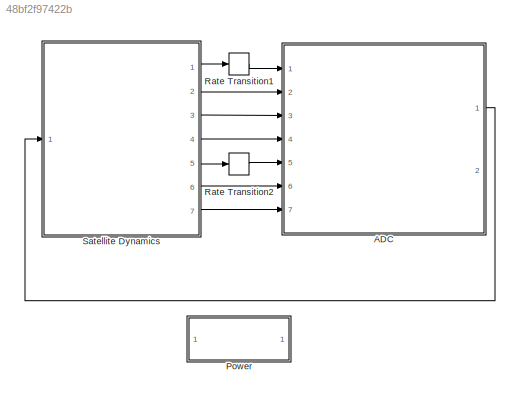
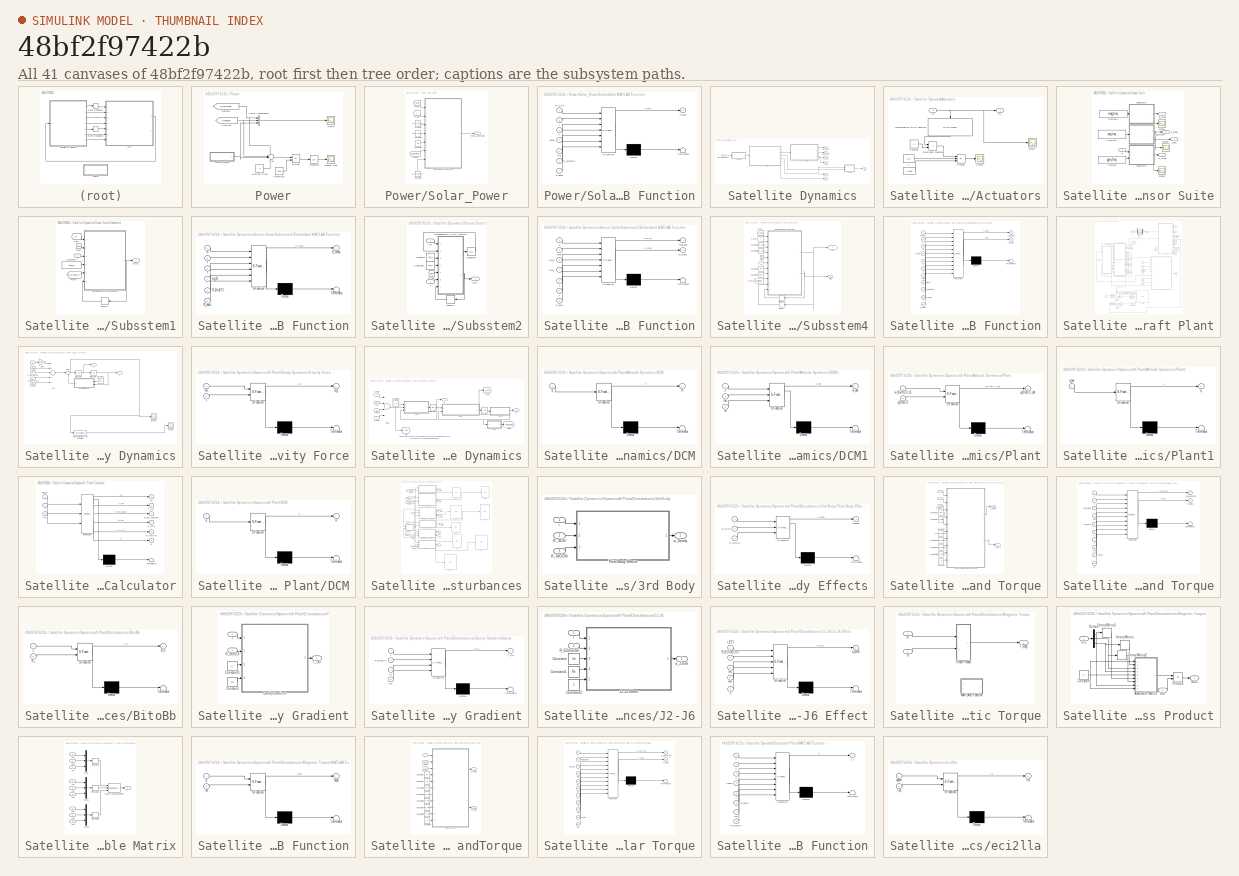
[diagram: thumbnail index - all 41 canvases of the model, root first then tree order]
MODEL slx_48bf2f97422b
KIND model
CONFIG AbsTol = auto
CONFIG FixedStep = dt
CONFIG InitFcn = sat_model_init\n
CONFIG MaxStep = auto
CONFIG MinStep = auto
CONFIG RelTol = 1e-6
CONFIG SampleTimeConstraint = Unconstrained
CONFIG Solver = ode4
CONFIG SolverMode = Auto
CONFIG SolverName = ode4
CONFIG StartTime = t0
CONFIG StopTime = tf
BLOCK [ModelReference] ADC
  ModelNameDialog = ADC
  ModelReferenceVersion = 1.1171
  Ports = [7, 2]
  Variant = off
BLOCK [SubSystem] Power
  Ports = []
  RequestExecContextInheritance = off
  Variant = off
BLOCK [Constant] Power/Conversion
  Value = 3600
BLOCK [From] Power/Detumb
  GotoTag = P_Detumble
BLOCK [Product] Power/Divide
  InputSameDT = off
  Inputs = */
  OutDataTypeStr = Inherit: Inherit via internal rule
  Ports = [2, 1]
  RndMeth = Floor
  SaturateOnIntegerOverflow = off
BLOCK [Scope] Power/Energy [Wh]
  Ports = [1]
  ScopeSpecificationString = Simulink.scopes.TimeScopeBlockCfg('CurrentConfiguration', extmgr.ConfigurationSet(extmgr.Configuration('Core','General UI',true,'FigureColor',[0.156862745098039 0.156862745098039 0.156862745098039]),extmgr.Configuration('Core','Source UI',true),extmgr.Configuration('Sources','WiredSimulink',true,'DataLogging',true,'DataLoggingVariableName','Power_Battery','DataLoggingDecimation','1','DataLoggingDe...<+2827ch>
BLOCK [Integrator] Power/Integrator
  InitialCondition = 25
  LimitOutput = on
  LowerSaturationLimit = 0
  Ports = [1, 1]
  UpperSaturationLimit = 30
BLOCK [Constant] Power/Nominal Draw
  Value = 6
BLOCK [From] Power/Pointing 
  GotoTag = P_pointing
BLOCK [Scope] Power/Power
  Ports = [1]
  ScopeSpecificationString = C++SS(StrPVP('Location','[380, 128, 1354, 889]'),StrPVP('Open','off'),MxPVP('AxesTitles',24,'struct(''axes1'',''%<SignalLabel>'')'),MxPVP('ScopeGraphics',28,'struct(''FigureColor'',''[0.156862745098039 0.156862745098039 0.156862745098039]'',''AxesColor'',''[0 0 0]'',''AxesTickColor'',''[0.686274509803922 0.686274509803922 0.686274509803922]'',''LineColors'',''[1 1 0;1 0 1;0 1 1;1 0 0;0 1 0;0 0 1]'...<+401ch>
BLOCK [SubSystem] Power/Solar_Power
  Ports = [0, 1]
  RequestExecContextInheritance = off
  Variant = off
BLOCK [Constant] Power/Solar_Power/Constant2
  Value = Re
BLOCK [Constant] Power/Solar_Power/Constant3
  Value = FACET_model.Asolar
BLOCK [Constant] Power/Solar_Power/Constant6
  Value = FACET_model.n
BLOCK [Constant] Power/Solar_Power/Constant8
  Value = FACET_model.num_of_faces
BLOCK [SubSystem] Power/Solar_Power/Embedded MATLAB Function
  ErrorFcn = Stateflow.Translate.translate
  PermitHierarchicalResolution = ExplicitOnly
  Ports = [7, 1]
  RequestExecContextInheritance = off
  SFBlockType = MATLAB Function
  TreatAsAtomicUnit = on
  Variant = off
BLOCK [Demux] Power/Solar_Power/Embedded MATLAB Function/ Demux 
  Outputs = 1
  Ports = [1, 1]
BLOCK [S-Function] Power/Solar_Power/Embedded MATLAB Function/ SFunction 
  EnableBusSupport = on
  FunctionName = sf_sfun
  PortCounts = [7 2]
  Ports = [7, 2]
  SFunctionDeploymentMode = off
  Tag = Stateflow S-Function ADC_Model 33
BLOCK [Terminator] Power/Solar_Power/Embedded MATLAB Function/ Terminator 
BLOCK [Inport] Power/Solar_Power/Embedded MATLAB Function/Pfaces
  IconDisplay = Port number
  Port = 7
BLOCK [Outport] Power/Solar_Power/Embedded MATLAB Function/Power
  IconDisplay = Port number
BLOCK [Inport] Power/Solar_Power/Embedded MATLAB Function/R_BtoECI
  IconDisplay = Port number
  Port = 6
BLOCK [Inport] Power/Solar_Power/Embedded MATLAB Function/R_SUN
  IconDisplay = Port number
BLOCK [Inport] Power/Solar_Power/Embedded MATLAB Function/Re
  IconDisplay = Port number
  Port = 5
BLOCK [Inport] Power/Solar_Power/Embedded MATLAB Function/faces
  IconDisplay = Port number
  Port = 4
BLOCK [Inport] Power/Solar_Power/Embedded MATLAB Function/n
  IconDisplay = Port number
  Port = 3
BLOCK [Inport] Power/Solar_Power/Embedded MATLAB Function/r
  IconDisplay = Port number
  Port = 2
BLOCK [From] Power/Solar_Power/From
  GotoTag = R_SUN
  TagVisibility = global
BLOCK [From] Power/Solar_Power/From1
  GotoTag = R_BtoECI
  TagVisibility = global
BLOCK [From] Power/Solar_Power/From2
  GotoTag = r
  TagVisibility = global
BLOCK [Outport] Power/Solar_Power/Power_Generated
  IconDisplay = Port number
BLOCK [Sum] Power/Sum
  IconShape = round
  InputSameDT = off
  Inputs = --+-
  OutDataTypeStr = Inherit: Inherit via internal rule
  Ports = [4, 1]
  SaturateOnIntegerOverflow = off
BLOCK [Concatenate] Power/Vector Concatenate
  NumInputs = 3
  Ports = [3, 1]
BLOCK [RateTransition] Rate Transition1
  OutPortSampleTime = .1
BLOCK [RateTransition] Rate Transition2
  OutPortSampleTime = .1
BLOCK [SubSystem] Satellite Dynamics
  Ports = [1, 7]
  RequestExecContextInheritance = off
  Variant = off
BLOCK [SubSystem] Satellite Dynamics/Actuators
  Ports = [1, 1]
  RequestExecContextInheritance = off
  Variant = off
BLOCK [Constant] Satellite Dynamics/Actuators/Constant
  Commented = on
  Value = 0
BLOCK [Constant] Satellite Dynamics/Actuators/I
  Commented = on
  Value = I_max
BLOCK [MATLABFcn] Satellite Dynamics/Actuators/Interpreted MATLAB Function
  Commented = on
  MATLABFcn = norm
  Ports = [1, 1]
BLOCK [Scope] Satellite Dynamics/Actuators/Power
  Commented = on
  Ports = [1]
  ScopeSpecificationString = C++SS(StrPVP('Location','[376, 337, 1316, 805]'),StrPVP('Open','off'),MxPVP('AxesTitles',24,'struct(''axes1'',''%<SignalLabel>'')'),MxPVP('ScopeGraphics',28,'struct(''FigureColor'',''[0.156862745098039 0.156862745098039 0.156862745098039]'',''AxesColor'',''[0 0 0]'',''AxesTickColor'',''[0.686274509803922 0.686274509803922 0.686274509803922]'',''LineColors'',''[1 1 0;1 0 1;0 1 1;1 0 0;0 1 0;0 0 1]'...<+405ch>
BLOCK [Product] Satellite Dynamics/Actuators/Product
  Commented = on
  InputSameDT = off
  Inputs = 3
  OutDataTypeStr = Inherit: Inherit via internal rule
  Ports = [3, 1]
  SaturateOnIntegerOverflow = off
BLOCK [RelationalOperator] Satellite Dynamics/Actuators/Relational Operator
  Commented = on
  InputSameDT = off
  Operator = >
  OutDataTypeStr = boolean
  Ports = [2, 1]
BLOCK [Constant] Satellite Dynamics/Actuators/V
  Commented = on
  Value = 3.3
BLOCK [Scope] Satellite Dynamics/Actuators/dipole
  Ports = [1]
  ScopeSpecificationString = C++SS(StrPVP('Location','[262, 216, 1215, 752]'),StrPVP('Open','off'),StrPVP('ZoomMode','xonly'),MxPVP('AxesTitles',24,'struct(''axes1'',''%<SignalLabel>'')'),MxPVP('ScopeGraphics',28,'struct(''FigureColor'',''[0.156862745098039 0.156862745098039 0.156862745098039]'',''AxesColor'',''[0 0 0]'',''AxesTickColor'',''[0.686274509803922 0.686274509803922 0.686274509803922]'',''LineColors'',''[1 1 0;1 0 ...<+401ch>
BLOCK [Inport] Satellite Dynamics/Actuators/m
  IconDisplay = Port number
BLOCK [Outport] Satellite Dynamics/Actuators/m1
  IconDisplay = Port number
BLOCK [Outport] Satellite Dynamics/B_meas
  IconDisplay = Port number
BLOCK [Outport] Satellite Dynamics/Euler_meas
  IconDisplay = Port number
  Port = 2
BLOCK [Inport] Satellite Dynamics/Magnetic Moment
  IconDisplay = Port number
BLOCK [Outport] Satellite Dynamics/S_flag
  IconDisplay = Port number
  Port = 7
BLOCK [Outport] Satellite Dynamics/S_meas
  IconDisplay = Port number
  Port = 3
BLOCK [SubSystem] Satellite Dynamics/Sensor Suite
  Ports = [1, 4]
  RequestExecContextInheritance = off
  Variant = off
BLOCK [Outport] Satellite Dynamics/Sensor Suite/B_meas
  IconDisplay = Port number
BLOCK [Constant] Satellite Dynamics/Sensor Suite/Constant
  Value = gyro_freq
BLOCK [Constant] Satellite Dynamics/Sensor Suite/Constant1
  Value = mag_freq
BLOCK [Constant] Satellite Dynamics/Sensor Suite/Constant2
  Value = sun_freq
BLOCK [Outport] Satellite Dynamics/Sensor Suite/S_flag
  IconDisplay = Port number
  Port = 4
BLOCK [Outport] Satellite Dynamics/Sensor Suite/S_meas
  IconDisplay = Port number
  Port = 3
BLOCK [Scope] Satellite Dynamics/Sensor Suite/Scope1
  Ports = [1]
  ScopeSpecificationString = C++SS(StrPVP('Location','[2, 81, 1922, 1108]'),StrPVP('Open','off'),StrPVP('ZoomMode','xonly'),MxPVP('AxesTitles',24,'struct(''axes1'',''%<SignalLabel>'')'),MxPVP('ScopeGraphics',28,'struct(''FigureColor'',''[0.156862745098039 0.156862745098039 0.156862745098039]'',''AxesColor'',''[0 0 0]'',''AxesTickColor'',''[0.686274509803922 0.686274509803922 0.686274509803922]'',''LineColors'',''[1 1 0;1 0 1;...<+387ch>
BLOCK [Scope] Satellite Dynamics/Sensor Suite/Scope2
  Ports = [1]
  ScopeSpecificationString = C++SS(StrPVP('Location','[6, 192, 1286, 861]'),StrPVP('Open','off'),MxPVP('AxesTitles',24,'struct(''axes1'',''%<SignalLabel>'')'),MxPVP('ScopeGraphics',28,'struct(''FigureColor'',''[0.156862745098039 0.156862745098039 0.156862745098039]'',''AxesColor'',''[0 0 0]'',''AxesTickColor'',''[0.686274509803922 0.686274509803922 0.686274509803922]'',''LineColors'',''[1 1 0;1 0 1;0 1 1;1 0 0;0 1 0;0 0 1]'',...<+393ch>
BLOCK [Scope] Satellite Dynamics/Sensor Suite/Scope3
  Ports = [1]
  ScopeSpecificationString = C++SS(StrPVP('Location','[-7, 349, 1907, 1016]'),StrPVP('Open','off'),StrPVP('ZoomMode','xonly'),MxPVP('AxesTitles',24,'struct(''axes1'',''%<SignalLabel>'')'),MxPVP('ScopeGraphics',28,'struct(''FigureColor'',''[0.156862745098039 0.156862745098039 0.156862745098039]'',''AxesColor'',''[0 0 0]'',''AxesTickColor'',''[0.686274509803922 0.686274509803922 0.686274509803922]'',''LineColors'',''[1 1 0;1 0 ...<+428ch>
BLOCK [SubSystem] Satellite Dynamics/Sensor Suite/Subsstem1
  Ports = [1, 1]
  RequestExecContextInheritance = off
  Variant = off
BLOCK [Clock] Satellite Dynamics/Sensor Suite/Subsstem1/Clock
BLOCK [Constant] Satellite Dynamics/Sensor Suite/Subsstem1/Constant1
  Value = sig_B
BLOCK [SubSystem] Satellite Dynamics/Sensor Suite/Subsstem1/Embedded MATLAB Function
  ErrorFcn = Stateflow.Translate.translate
  PermitHierarchicalResolution = ExplicitOnly
  Ports = [6, 1]
  RequestExecContextInheritance = off
  SFBlockType = MATLAB Function
  TreatAsAtomicUnit = on
  Variant = off
BLOCK [Demux] Satellite Dynamics/Sensor Suite/Subsstem1/Embedded MATLAB Function/ Demux 
  Outputs = 1
  Ports = [1, 1]
BLOCK [S-Function] Satellite Dynamics/Sensor Suite/Subsstem1/Embedded MATLAB Function/ SFunction 
  EnableBusSupport = on
  FunctionName = sf_sfun
  PortCounts = [6 2]
  Ports = [6, 2]
  SFunctionDeploymentMode = off
  Tag = Stateflow S-Function ADC_Model 5
BLOCK [Terminator] Satellite Dynamics/Sensor Suite/Subsstem1/Embedded MATLAB Function/ Terminator 
BLOCK [Inport] Satellite Dynamics/Sensor Suite/Subsstem1/Embedded MATLAB Function/B
  IconDisplay = Port number
BLOCK [Inport] Satellite Dynamics/Sensor Suite/Subsstem1/Embedded MATLAB Function/B_hold
  IconDisplay = Port number
  Port = 6
BLOCK [Outport] Satellite Dynamics/Sensor Suite/Subsstem1/Embedded MATLAB Function/B_meas
  IconDisplay = Port number
BLOCK [Inport] Satellite Dynamics/Sensor Suite/Subsstem1/Embedded MATLAB Function/R_BtoECI
  IconDisplay = Port number
  Port = 5
BLOCK [Inport] Satellite Dynamics/Sensor Suite/Subsstem1/Embedded MATLAB Function/f
  IconDisplay = Port number
  Port = 3
BLOCK [Inport] Satellite Dynamics/Sensor Suite/Subsstem1/Embedded MATLAB Function/sig_B
  IconDisplay = Port number
  Port = 4
BLOCK [Inport] Satellite Dynamics/Sensor Suite/Subsstem1/Embedded MATLAB Function/t
  IconDisplay = Port number
  Port = 2
BLOCK [From] Satellite Dynamics/Sensor Suite/Subsstem1/From
  GotoTag = B
  TagVisibility = global
BLOCK [From] Satellite Dynamics/Sensor Suite/Subsstem1/From1
  GotoTag = R_BtoECI
  TagVisibility = global
BLOCK [Memory] Satellite Dynamics/Sensor Suite/Subsstem1/Memory
  X0 = [0;0;0]
BLOCK [Outport] Satellite Dynamics/Sensor Suite/Subsstem1/Out1
  IconDisplay = Port number
BLOCK [Inport] Satellite Dynamics/Sensor Suite/Subsstem1/f
  IconDisplay = Port number
BLOCK [SubSystem] Satellite Dynamics/Sensor Suite/Subsstem2
  Ports = [2, 1]
  RequestExecContextInheritance = off
  Variant = off
BLOCK [Clock] Satellite Dynamics/Sensor Suite/Subsstem2/Clock
BLOCK [Constant] Satellite Dynamics/Sensor Suite/Subsstem2/Constant
  Value = sig_u
BLOCK [Constant] Satellite Dynamics/Sensor Suite/Subsstem2/Constant1
  Value = sig_v
BLOCK [SubSystem] Satellite Dynamics/Sensor Suite/Subsstem2/Embedded MATLAB Function
  ErrorFcn = Stateflow.Translate.translate
  PermitHierarchicalResolution = ExplicitOnly
  Ports = [7, 2]
  RequestExecContextInheritance = off
  SFBlockType = MATLAB Function
  TreatAsAtomicUnit = on
  Variant = off
BLOCK [Demux] Satellite Dynamics/Sensor Suite/Subsstem2/Embedded MATLAB Function/ Demux 
  Outputs = 1
  Ports = [1, 1]
BLOCK [S-Function] Satellite Dynamics/Sensor Suite/Subsstem2/Embedded MATLAB Function/ SFunction 
  EnableBusSupport = on
  FunctionName = sf_sfun
  PortCounts = [7 3]
  Ports = [7, 3]
  SFunctionDeploymentMode = off
  Tag = Stateflow S-Function ADC_Model 6
BLOCK [Terminator] Satellite Dynamics/Sensor Suite/Subsstem2/Embedded MATLAB Function/ Terminator 
BLOCK [Inport] Satellite Dynamics/Sensor Suite/Subsstem2/Embedded MATLAB Function/bias
  IconDisplay = Port number
  Port = 2
BLOCK [Outport] Satellite Dynamics/Sensor Suite/Subsstem2/Embedded MATLAB Function/bias_dot
  IconDisplay = Port number
BLOCK [Inport] Satellite Dynamics/Sensor Suite/Subsstem2/Embedded MATLAB Function/f
  IconDisplay = Port number
  Port = 6
BLOCK [Inport] Satellite Dynamics/Sensor Suite/Subsstem2/Embedded MATLAB Function/sig_u
  IconDisplay = Port number
  Port = 3
BLOCK [Inport] Satellite Dynamics/Sensor Suite/Subsstem2/Embedded MATLAB Function/sig_v
  IconDisplay = Port number
  Port = 4
BLOCK [Inport] Satellite Dynamics/Sensor Suite/Subsstem2/Embedded MATLAB Function/t
  IconDisplay = Port number
  Port = 5
BLOCK [Inport] Satellite Dynamics/Sensor Suite/Subsstem2/Embedded MATLAB Function/w
  IconDisplay = Port number
BLOCK [Inport] Satellite Dynamics/Sensor Suite/Subsstem2/Embedded MATLAB Function/w_hold
  IconDisplay = Port number
  Port = 7
BLOCK [Outport] Satellite Dynamics/Sensor Suite/Subsstem2/Embedded MATLAB Function/w_meas
  IconDisplay = Port number
  Port = 2
BLOCK [Inport] Satellite Dynamics/Sensor Suite/Subsstem2/In1
  IconDisplay = Port number
BLOCK [Integrator] Satellite Dynamics/Sensor Suite/Subsstem2/Integrator
  InitialCondition = bias0
  Ports = [1, 1]
BLOCK [Memory] Satellite Dynamics/Sensor Suite/Subsstem2/Memory
  X0 = w0
BLOCK [Outport] Satellite Dynamics/Sensor Suite/Subsstem2/Out1
  IconDisplay = Port number
BLOCK [Inport] Satellite Dynamics/Sensor Suite/Subsstem2/f
  IconDisplay = Port number
  Port = 2
BLOCK [SubSystem] Satellite Dynamics/Sensor Suite/Subsstem4
  Ports = [1, 2]
  RequestExecContextInheritance = off
  Variant = off
BLOCK [Clock] Satellite Dynamics/Sensor Suite/Subsstem4/Clock
BLOCK [Constant] Satellite Dynamics/Sensor Suite/Subsstem4/Constant1
  Value = sig_s
BLOCK [Constant] Satellite Dynamics/Sensor Suite/Subsstem4/Constant2
  Value = Re
BLOCK [Constant] Satellite Dynamics/Sensor Suite/Subsstem4/Constant6
  Value = FACET_model.n
BLOCK [Constant] Satellite Dynamics/Sensor Suite/Subsstem4/Constant8
  Value = FACET_model.num_of_faces
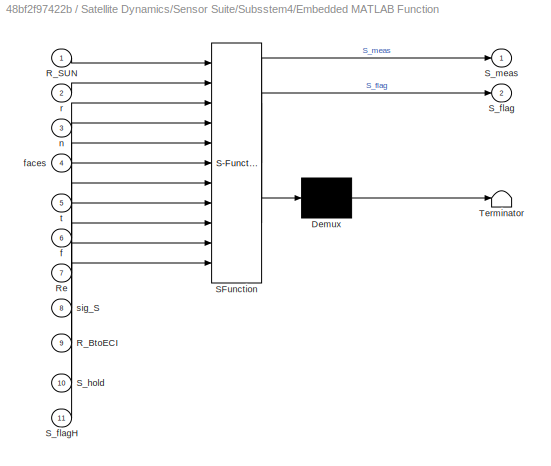
BLOCK [SubSystem] Satellite Dynamics/Sensor Suite/Subsstem4/Embedded MATLAB Function
  ErrorFcn = Stateflow.Translate.translate
  PermitHierarchicalResolution = ExplicitOnly
  Ports = [11, 2]
  RequestExecContextInheritance = off
  SFBlockType = MATLAB Function
  TreatAsAtomicUnit = on
  Variant = off
BLOCK [Demux] Satellite Dynamics/Sensor Suite/Subsstem4/Embedded MATLAB Function/ Demux 
  Outputs = 1
  Ports = [1, 1]
BLOCK [S-Function] Satellite Dynamics/Sensor Suite/Subsstem4/Embedded MATLAB Function/ SFunction 
  EnableBusSupport = on
  FunctionName = sf_sfun
  PortCounts = [11 3]
  Ports = [11, 3]
  SFunctionDeploymentMode = off
  Tag = Stateflow S-Function ADC_Model 8
BLOCK [Terminator] Satellite Dynamics/Sensor Suite/Subsstem4/Embedded MATLAB Function/ Terminator 
BLOCK [Inport] Satellite Dynamics/Sensor Suite/Subsstem4/Embedded MATLAB Function/R_BtoECI
  IconDisplay = Port number
  Port = 9
BLOCK [Inport] Satellite Dynamics/Sensor Suite/Subsstem4/Embedded MATLAB Function/R_SUN
  IconDisplay = Port number
BLOCK [Inport] Satellite Dynamics/Sensor Suite/Subsstem4/Embedded MATLAB Function/Re
  IconDisplay = Port number
  Port = 7
BLOCK [Outport] Satellite Dynamics/Sensor Suite/Subsstem4/Embedded MATLAB Function/S_flag
  IconDisplay = Port number
  Port = 2
BLOCK [Inport] Satellite Dynamics/Sensor Suite/Subsstem4/Embedded MATLAB Function/S_flagH
  IconDisplay = Port number
  Port = 11
BLOCK [Inport] Satellite Dynamics/Sensor Suite/Subsstem4/Embedded MATLAB Function/S_hold
  IconDisplay = Port number
  Port = 10
BLOCK [Outport] Satellite Dynamics/Sensor Suite/Subsstem4/Embedded MATLAB Function/S_meas
  IconDisplay = Port number
BLOCK [Inport] Satellite Dynamics/Sensor Suite/Subsstem4/Embedded MATLAB Function/f
  IconDisplay = Port number
  Port = 6
BLOCK [Inport] Satellite Dynamics/Sensor Suite/Subsstem4/Embedded MATLAB Function/faces
  IconDisplay = Port number
  Port = 4
BLOCK [Inport] Satellite Dynamics/Sensor Suite/Subsstem4/Embedded MATLAB Function/n
  IconDisplay = Port number
  Port = 3
BLOCK [Inport] Satellite Dynamics/Sensor Suite/Subsstem4/Embedded MATLAB Function/r
  IconDisplay = Port number
  Port = 2
BLOCK [Inport] Satellite Dynamics/Sensor Suite/Subsstem4/Embedded MATLAB Function/sig_S
  IconDisplay = Port number
  Port = 8
BLOCK [Inport] Satellite Dynamics/Sensor Suite/Subsstem4/Embedded MATLAB Function/t
  IconDisplay = Port number
  Port = 5
BLOCK [From] Satellite Dynamics/Sensor Suite/Subsstem4/From
  GotoTag = R_SUN
  TagVisibility = global
BLOCK [From] Satellite Dynamics/Sensor Suite/Subsstem4/From1
  GotoTag = R_BtoECI
  TagVisibility = global
BLOCK [From] Satellite Dynamics/Sensor Suite/Subsstem4/From2
  GotoTag = r
  TagVisibility = global
BLOCK [Memory] Satellite Dynamics/Sensor Suite/Subsstem4/Memory
  X0 = [0;0;0]
BLOCK [Memory] Satellite Dynamics/Sensor Suite/Subsstem4/Memory1
BLOCK [Outport] Satellite Dynamics/Sensor Suite/Subsstem4/Out1
  IconDisplay = Signal name
BLOCK [Outport] Satellite Dynamics/Sensor Suite/Subsstem4/Sflag
  IconDisplay = Port number
  Port = 2
BLOCK [Inport] Satellite Dynamics/Sensor Suite/Subsstem4/f
  IconDisplay = Port number
BLOCK [Inport] Satellite Dynamics/Sensor Suite/w
  IconDisplay = Port number
BLOCK [Outport] Satellite Dynamics/Sensor Suite/w_meas
  IconDisplay = Port number
  Port = 2
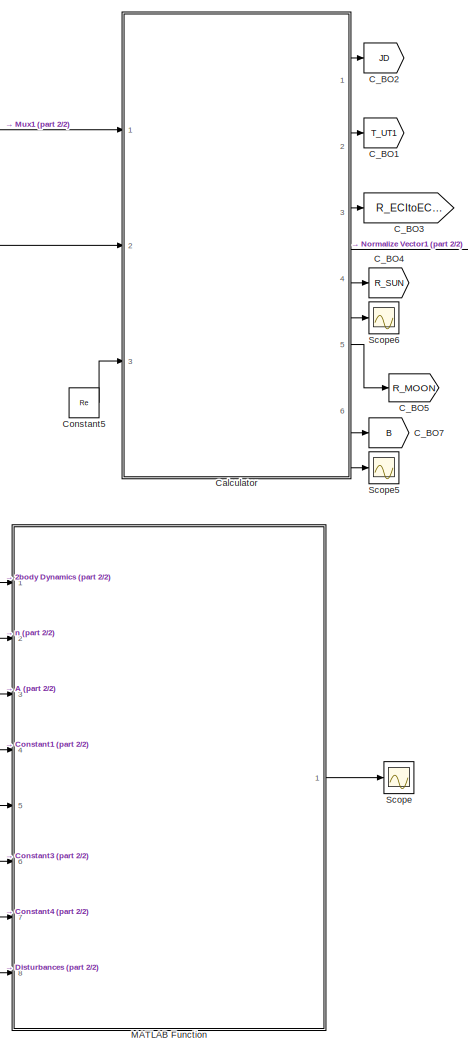
[diagram: Satellite Dynamics/Spacecraft Plant - part 1/2, right side, full height]
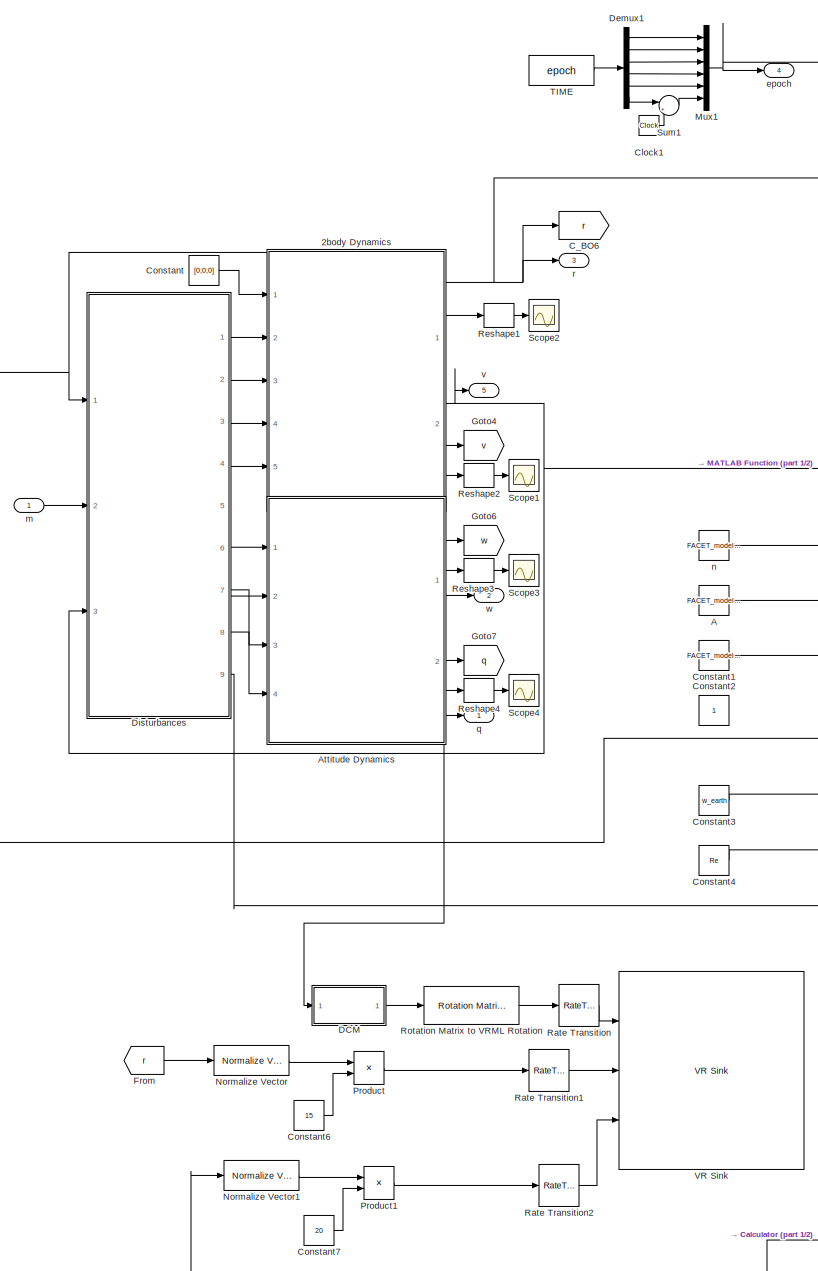
[diagram: Satellite Dynamics/Spacecraft Plant - part 2/2, left side, full height]
BLOCK [SubSystem] Satellite Dynamics/Spacecraft Plant
  Ports = [1, 5]
  RequestExecContextInheritance = off
  Variant = off
BLOCK [SubSystem] Satellite Dynamics/Spacecraft Plant/2body Dynamics
  Ports = [5, 2]
  RequestExecContextInheritance = off
  Variant = off
BLOCK [Sum] Satellite Dynamics/Spacecraft Plant/2body Dynamics/Add
  InputSameDT = off
  Inputs = +++++
  OutDataTypeStr = Inherit: Inherit via internal rule
  Ports = [5, 1]
  SaturateOnIntegerOverflow = off
BLOCK [Constant] Satellite Dynamics/Spacecraft Plant/2body Dynamics/Constant
  Value = mu
BLOCK [Inport] Satellite Dynamics/Spacecraft Plant/2body Dynamics/F_I
  IconDisplay = Port number
BLOCK [Gain] Satellite Dynamics/Spacecraft Plant/2body Dynamics/Gain
  Gain = 1/m
  OutDataTypeStr = Inherit: Inherit via internal rule
  ParamDataTypeStr = Inherit: Inherit via internal rule
  SaturateOnIntegerOverflow = off
BLOCK [SubSystem] Satellite Dynamics/Spacecraft Plant/2body Dynamics/Gravity Force
  ErrorFcn = Stateflow.Translate.translate
  PermitHierarchicalResolution = ExplicitOnly
  Ports = [2, 1]
  RequestExecContextInheritance = off
  SFBlockType = MATLAB Function
  TreatAsAtomicUnit = on
  Variant = off
BLOCK [Demux] Satellite Dynamics/Spacecraft Plant/2body Dynamics/Gravity Force/ Demux 
  Outputs = 1
  Ports = [1, 1]
BLOCK [S-Function] Satellite Dynamics/Spacecraft Plant/2body Dynamics/Gravity Force/ SFunction 
  EnableBusSupport = on
  FunctionName = sf_sfun
  PortCounts = [2 2]
  Ports = [2, 2]
  SFunctionDeploymentMode = off
  Tag = Stateflow S-Function ADC_Model 1
BLOCK [Terminator] Satellite Dynamics/Spacecraft Plant/2body Dynamics/Gravity Force/ Terminator 
BLOCK [Outport] Satellite Dynamics/Spacecraft Plant/2body Dynamics/Gravity Force/a_g
  IconDisplay = Port number
BLOCK [Inport] Satellite Dynamics/Spacecraft Plant/2body Dynamics/Gravity Force/mu
  IconDisplay = Port number
BLOCK [Inport] Satellite Dynamics/Spacecraft Plant/2body Dynamics/Gravity Force/r
  IconDisplay = Port number
  Port = 2
BLOCK [Integrator] Satellite Dynamics/Spacecraft Plant/2body Dynamics/Integrator
  InitialCondition = v0
  Ports = [1, 1]
BLOCK [Integrator] Satellite Dynamics/Spacecraft Plant/2body Dynamics/Integrator1
  InitialCondition = r0
  Ports = [1, 1]
BLOCK [MATLABFcn] Satellite Dynamics/Spacecraft Plant/2body Dynamics/Interpreted MATLAB Function
  Commented = on
  MATLABFcn = norm
  Ports = [1, 1]
BLOCK [Scope] Satellite Dynamics/Spacecraft Plant/2body Dynamics/Scope
  Commented = on
  Ports = [1]
  ScopeSpecificationString = C++SS(StrPVP('Location','[883, 64, 1914, 596]'),StrPVP('Open','off'),StrPVP('ZoomMode','yonly'),MxPVP('AxesTitles',24,'struct(''axes1'',''%<SignalLabel>'')'),MxPVP('ScopeGraphics',28,'struct(''FigureColor'',''[0.156862745098039 0.156862745098039 0.156862745098039]'',''AxesColor'',''[0 0 0]'',''AxesTickColor'',''[0.686274509803922 0.686274509803922 0.686274509803922]'',''LineColors'',''[1 1 0;1 0 1...<+404ch>
BLOCK [Scope] Satellite Dynamics/Spacecraft Plant/2body Dynamics/Scope1
  Commented = on
  Ports = [1]
  ScopeSpecificationString = C++SS(StrPVP('Location','[12, 57, 874, 602]'),StrPVP('Open','off'),MxPVP('AxesTitles',24,'struct(''axes1'',''%<SignalLabel>'')'),MxPVP('ScopeGraphics',28,'struct(''FigureColor'',''[0.156862745098039 0.156862745098039 0.156862745098039]'',''AxesColor'',''[0 0 0]'',''AxesTickColor'',''[0.686274509803922 0.686274509803922 0.686274509803922]'',''LineColors'',''[1 1 0;1 0 1;0 1 1;1 0 0;0 1 0;0 0 1]'','...<+369ch>
BLOCK [Sum] Satellite Dynamics/Spacecraft Plant/2body Dynamics/Sum
  IconShape = round
  InputSameDT = off
  Inputs = |++
  OutDataTypeStr = Inherit: Inherit via internal rule
  Ports = [2, 1]
  SaturateOnIntegerOverflow = off
BLOCK [Inport] Satellite Dynamics/Spacecraft Plant/2body Dynamics/a_3body
  IconDisplay = Port number
  Port = 5
BLOCK [Inport] Satellite Dynamics/Spacecraft Plant/2body Dynamics/a_J2to6
  IconDisplay = Port number
  Port = 2
BLOCK [Inport] Satellite Dynamics/Spacecraft Plant/2body Dynamics/a_aerodrag
  IconDisplay = Port number
  Port = 3
BLOCK [Inport] Satellite Dynamics/Spacecraft Plant/2body Dynamics/a_solardrag
  IconDisplay = Port number
  Port = 4
BLOCK [Outport] Satellite Dynamics/Spacecraft Plant/2body Dynamics/r
  IconDisplay = Port number
BLOCK [Outport] Satellite Dynamics/Spacecraft Plant/2body Dynamics/v
  IconDisplay = Port number
  Port = 2
BLOCK [Constant] Satellite Dynamics/Spacecraft Plant/A
  Value = FACET_model.A
BLOCK [SubSystem] Satellite Dynamics/Spacecraft Plant/Attitude Dynamics
  Ports = [4, 2]
  RequestExecContextInheritance = off
  Variant = off
BLOCK [Sum] Satellite Dynamics/Spacecraft Plant/Attitude Dynamics/Add1
  InputSameDT = off
  Inputs = ++++
  OutDataTypeStr = Inherit: Inherit via internal rule
  Ports = [4, 1]
  SaturateOnIntegerOverflow = off
BLOCK [Constant] Satellite Dynamics/Spacecraft Plant/Attitude Dynamics/Constant1
  Value = J_c
BLOCK [SubSystem] Satellite Dynamics/Spacecraft Plant/Attitude Dynamics/DCM
  ErrorFcn = Stateflow.Translate.translate
  PermitHierarchicalResolution = ExplicitOnly
  Ports = [1, 1]
  RequestExecContextInheritance = off
  SFBlockType = MATLAB Function
  TreatAsAtomicUnit = on
  Variant = off
BLOCK [Demux] Satellite Dynamics/Spacecraft Plant/Attitude Dynamics/DCM/ Demux 
  Outputs = 1
  Ports = [1, 1]
BLOCK [S-Function] Satellite Dynamics/Spacecraft Plant/Attitude Dynamics/DCM/ SFunction 
  EnableBusSupport = on
  FunctionName = sf_sfun
  PortCounts = [1 2]
  Ports = [1, 2]
  SFunctionDeploymentMode = off
  Tag = Stateflow S-Function ADC_Model 4
BLOCK [Terminator] Satellite Dynamics/Spacecraft Plant/Attitude Dynamics/DCM/ Terminator 
BLOCK [Outport] Satellite Dynamics/Spacecraft Plant/Attitude Dynamics/DCM/R
  IconDisplay = Port number
BLOCK [Inport] Satellite Dynamics/Spacecraft Plant/Attitude Dynamics/DCM/q
  IconDisplay = Port number
BLOCK [SubSystem] Satellite Dynamics/Spacecraft Plant/Attitude Dynamics/DCM1
  ErrorFcn = Stateflow.Translate.translate
  PermitHierarchicalResolution = ExplicitOnly
  Ports = [3, 1]
  RequestExecContextInheritance = off
  SFBlockType = MATLAB Function
  TreatAsAtomicUnit = on
  Variant = off
BLOCK [Demux] Satellite Dynamics/Spacecraft Plant/Attitude Dynamics/DCM1/ Demux 
  Outputs = 1
  Ports = [1, 1]
BLOCK [S-Function] Satellite Dynamics/Spacecraft Plant/Attitude Dynamics/DCM1/ SFunction 
  EnableBusSupport = on
  FunctionName = sf_sfun
  PortCounts = [3 2]
  Ports = [3, 2]
  SFunctionDeploymentMode = off
  Tag = Stateflow S-Function ADC_Model 3
BLOCK [Terminator] Satellite Dynamics/Spacecraft Plant/Attitude Dynamics/DCM1/ Terminator 
BLOCK [Inport] Satellite Dynamics/Spacecraft Plant/Attitude Dynamics/DCM1/J
  IconDisplay = Port number
BLOCK [Inport] Satellite Dynamics/Spacecraft Plant/Attitude Dynamics/DCM1/tau
  IconDisplay = Port number
  Port = 2
BLOCK [Inport] Satellite Dynamics/Spacecraft Plant/Attitude Dynamics/DCM1/w
  IconDisplay = Port number
  Port = 3
BLOCK [Outport] Satellite Dynamics/Spacecraft Plant/Attitude Dynamics/DCM1/w_dot
  IconDisplay = Port number
BLOCK [Goto] Satellite Dynamics/Spacecraft Plant/Attitude Dynamics/Goto2
  GotoTag = R_BtoECI
  TagVisibility = global
BLOCK [Integrator] Satellite Dynamics/Spacecraft Plant/Attitude Dynamics/Integrator1
  InitialCondition = q0
  Ports = [1, 1]
BLOCK [Integrator] Satellite Dynamics/Spacecraft Plant/Attitude Dynamics/Integrator2
  InitialCondition = w0
  Ports = [1, 1]
BLOCK [SubSystem] Satellite Dynamics/Spacecraft Plant/Attitude Dynamics/Plant
  ErrorFcn = Stateflow.Translate.translate
  PermitHierarchicalResolution = ExplicitOnly
  Ports = [2, 1]
  RequestExecContextInheritance = off
  SFBlockType = MATLAB Function
  TreatAsAtomicUnit = on
  Variant = off
BLOCK [Demux] Satellite Dynamics/Spacecraft Plant/Attitude Dynamics/Plant/ Demux 
  Outputs = 1
  Ports = [1, 1]
BLOCK [S-Function] Satellite Dynamics/Spacecraft Plant/Attitude Dynamics/Plant/ SFunction 
  EnableBusSupport = on
  FunctionName = sf_sfun
  PortCounts = [2 2]
  Ports = [2, 2]
  SFunctionDeploymentMode = off
  Tag = Stateflow S-Function ADC_Model 17
BLOCK [Terminator] Satellite Dynamics/Spacecraft Plant/Attitude Dynamics/Plant/ Terminator 
BLOCK [Inport] Satellite Dynamics/Spacecraft Plant/Attitude Dynamics/Plant/q_BtoECI
  IconDisplay = Port number
  Port = 2
BLOCK [Outport] Satellite Dynamics/Spacecraft Plant/Attitude Dynamics/Plant/q_BtoECI_dot
  IconDisplay = Port number
BLOCK [Inport] Satellite Dynamics/Spacecraft Plant/Attitude Dynamics/Plant/w_BwrtECI_B
  IconDisplay = Port number
BLOCK [SubSystem] Satellite Dynamics/Spacecraft Plant/Attitude Dynamics/Plant1
  ErrorFcn = Stateflow.Translate.translate
  PermitHierarchicalResolution = ExplicitOnly
  Ports = [1, 1]
  RequestExecContextInheritance = off
  SFBlockType = MATLAB Function
  TreatAsAtomicUnit = on
  Variant = off
BLOCK [Demux] Satellite Dynamics/Spacecraft Plant/Attitude Dynamics/Plant1/ Demux 
  Outputs = 1
  Ports = [1, 1]
BLOCK [S-Function] Satellite Dynamics/Spacecraft Plant/Attitude Dynamics/Plant1/ SFunction 
  EnableBusSupport = on
  FunctionName = sf_sfun
  PortCounts = [1 2]
  Ports = [1, 2]
  SFunctionDeploymentMode = off
  Tag = Stateflow S-Function ADC_Model 2
BLOCK [Terminator] Satellite Dynamics/Spacecraft Plant/Attitude Dynamics/Plant1/ Terminator 
BLOCK [Outport] Satellite Dynamics/Spacecraft Plant/Attitude Dynamics/Plant1/q
  IconDisplay = Port number
BLOCK [Inport] Satellite Dynamics/Spacecraft Plant/Attitude Dynamics/Plant1/q_hat
  IconDisplay = Port number
BLOCK [Inport] Satellite Dynamics/Spacecraft Plant/Attitude Dynamics/T_GG
  IconDisplay = Port number
BLOCK [Inport] Satellite Dynamics/Spacecraft Plant/Attitude Dynamics/T_aero
  IconDisplay = Port number
  Port = 2
BLOCK [Inport] Satellite Dynamics/Spacecraft Plant/Attitude Dynamics/T_mag
  IconDisplay = Port number
  Port = 4
BLOCK [Inport] Satellite Dynamics/Spacecraft Plant/Attitude Dynamics/T_solar
  IconDisplay = Port number
  Port = 3
BLOCK [Goto] Satellite Dynamics/Spacecraft Plant/Attitude Dynamics/Tau 
  GotoTag = Tau
  TagVisibility = global
BLOCK [Outport] Satellite Dynamics/Spacecraft Plant/Attitude Dynamics/q
  IconDisplay = Port number
  Port = 2
BLOCK [Goto] Satellite Dynamics/Spacecraft Plant/Attitude Dynamics/q_dot 
  GotoTag = q_dot
  TagVisibility = global
BLOCK [Outport] Satellite Dynamics/Spacecraft Plant/Attitude Dynamics/w
  IconDisplay = Port number
BLOCK [Goto] Satellite Dynamics/Spacecraft Plant/C_BO1
  GotoTag = T_UT1
  TagVisibility = global
BLOCK [Goto] Satellite Dynamics/Spacecraft Plant/C_BO2
  GotoTag = JD
  TagVisibility = global
BLOCK [Goto] Satellite Dynamics/Spacecraft Plant/C_BO3
  GotoTag = R_ECItoECEF
  TagVisibility = global
BLOCK [Goto] Satellite Dynamics/Spacecraft Plant/C_BO4
  GotoTag = R_SUN
  TagVisibility = global
BLOCK [Goto] Satellite Dynamics/Spacecraft Plant/C_BO5
  GotoTag = R_MOON
  TagVisibility = global
BLOCK [Goto] Satellite Dynamics/Spacecraft Plant/C_BO6
  GotoTag = r
  TagVisibility = global
BLOCK [Goto] Satellite Dynamics/Spacecraft Plant/C_BO7
  GotoTag = B
  TagVisibility = global
BLOCK [SubSystem] Satellite Dynamics/Spacecraft Plant/Calculator
  ErrorFcn = Stateflow.Translate.translate
  PermitHierarchicalResolution = ExplicitOnly
  Ports = [3, 6]
  RequestExecContextInheritance = off
  SFBlockType = MATLAB Function
  TreatAsAtomicUnit = on
  Variant = off
BLOCK [Demux] Satellite Dynamics/Spacecraft Plant/Calculator/ Demux 
  Outputs = 1
  Ports = [1, 1]
BLOCK [S-Function] Satellite Dynamics/Spacecraft Plant/Calculator/ SFunction 
  EnableBusSupport = on
  FunctionName = sf_sfun
  PortCounts = [3 7]
  Ports = [3, 7]
  SFunctionDeploymentMode = off
  Tag = Stateflow S-Function ADC_Model 10
BLOCK [Terminator] Satellite Dynamics/Spacecraft Plant/Calculator/ Terminator 
BLOCK [Outport] Satellite Dynamics/Spacecraft Plant/Calculator/B
  IconDisplay = Port number
  Port = 6
BLOCK [Outport] Satellite Dynamics/Spacecraft Plant/Calculator/JD
  IconDisplay = Port number
BLOCK [Outport] Satellite Dynamics/Spacecraft Plant/Calculator/R_ECItoECEF
  IconDisplay = Port number
  Port = 3
BLOCK [Outport] Satellite Dynamics/Spacecraft Plant/Calculator/R_MOON
  IconDisplay = Port number
  Port = 5
BLOCK [Outport] Satellite Dynamics/Spacecraft Plant/Calculator/R_SUN
  IconDisplay = Port number
  Port = 4
BLOCK [Inport] Satellite Dynamics/Spacecraft Plant/Calculator/Re
  IconDisplay = Port number
  Port = 3
BLOCK [Outport] Satellite Dynamics/Spacecraft Plant/Calculator/T_UT1
  IconDisplay = Port number
  Port = 2
BLOCK [Inport] Satellite Dynamics/Spacecraft Plant/Calculator/epoch
  IconDisplay = Port number
BLOCK [Inport] Satellite Dynamics/Spacecraft Plant/Calculator/r
  IconDisplay = Port number
  Port = 2
BLOCK [Clock] Satellite Dynamics/Spacecraft Plant/Clock1
BLOCK [Constant] Satellite Dynamics/Spacecraft Plant/Constant
  Value = [0;0;0]
BLOCK [Constant] Satellite Dynamics/Spacecraft Plant/Constant1
  Value = FACET_model.num_of_faces
BLOCK [Constant] Satellite Dynamics/Spacecraft Plant/Constant2
BLOCK [Constant] Satellite Dynamics/Spacecraft Plant/Constant3
  Value = w_earth
BLOCK [Constant] Satellite Dynamics/Spacecraft Plant/Constant4
  Value = Re
BLOCK [Constant] Satellite Dynamics/Spacecraft Plant/Constant5
  Value = Re
BLOCK [Constant] Satellite Dynamics/Spacecraft Plant/Constant6
  Value = 15
BLOCK [Constant] Satellite Dynamics/Spacecraft Plant/Constant7
  Value = 20
BLOCK [SubSystem] Satellite Dynamics/Spacecraft Plant/DCM
  ErrorFcn = Stateflow.Translate.translate
  PermitHierarchicalResolution = ExplicitOnly
  Ports = [1, 1]
  RequestExecContextInheritance = off
  SFBlockType = MATLAB Function
  TreatAsAtomicUnit = on
  Variant = off
BLOCK [Demux] Satellite Dynamics/Spacecraft Plant/DCM/ Demux 
  Outputs = 1
  Ports = [1, 1]
BLOCK [S-Function] Satellite Dynamics/Spacecraft Plant/DCM/ SFunction 
  EnableBusSupport = on
  FunctionName = sf_sfun
  PortCounts = [1 2]
  Ports = [1, 2]
  SFunctionDeploymentMode = off
  Tag = Stateflow S-Function ADC_Model 14
BLOCK [Terminator] Satellite Dynamics/Spacecraft Plant/DCM/ Terminator 
BLOCK [Outport] Satellite Dynamics/Spacecraft Plant/DCM/R
  IconDisplay = Port number
BLOCK [Inport] Satellite Dynamics/Spacecraft Plant/DCM/q
  IconDisplay = Port number
BLOCK [Demux] Satellite Dynamics/Spacecraft Plant/Demux1
  DisplayOption = bar
  Outputs = 6
  Ports = [1, 6]
BLOCK [SubSystem] Satellite Dynamics/Spacecraft Plant/Disturbances
  Ports = [3, 9]
  RequestExecContextInheritance = off
  Variant = off
BLOCK [SubSystem] Satellite Dynamics/Spacecraft Plant/Disturbances/3rd Body
  Ports = [3, 1]
  RequestExecContextInheritance = off
  TreatAsAtomicUnit = on
  Variant = off
BLOCK [Inport] Satellite Dynamics/Spacecraft Plant/Disturbances/3rd Body/R_MOON
  IconDisplay = Port number
  Port = 3
BLOCK [Inport] Satellite Dynamics/Spacecraft Plant/Disturbances/3rd Body/R_SUN
  IconDisplay = Port number
  Port = 2
BLOCK [SubSystem] Satellite Dynamics/Spacecraft Plant/Disturbances/3rd Body/Third Body Effects
  ErrorFcn = Stateflow.Translate.translate
  PermitHierarchicalResolution = ExplicitOnly
  Ports = [3, 1]
  RequestExecContextInheritance = off
  SFBlockType = MATLAB Function
  TreatAsAtomicUnit = on
  Variant = off
BLOCK [Demux] Satellite Dynamics/Spacecraft Plant/Disturbances/3rd Body/Third Body Effects/ Demux 
  Outputs = 1
  Ports = [1, 1]
BLOCK [S-Function] Satellite Dynamics/Spacecraft Plant/Disturbances/3rd Body/Third Body Effects/ SFunction 
  EnableBusSupport = on
  FunctionName = sf_sfun
  PortCounts = [3 2]
  Ports = [3, 2]
  SFunctionDeploymentMode = off
  Tag = Stateflow S-Function ADC_Model 28
BLOCK [Terminator] Satellite Dynamics/Spacecraft Plant/Disturbances/3rd Body/Third Body Effects/ Terminator 
BLOCK [Inport] Satellite Dynamics/Spacecraft Plant/Disturbances/3rd Body/Third Body Effects/R_MOON
  IconDisplay = Port number
  Port = 3
BLOCK [Inport] Satellite Dynamics/Spacecraft Plant/Disturbances/3rd Body/Third Body Effects/R_SUN
  IconDisplay = Port number
  Port = 2
BLOCK [Outport] Satellite Dynamics/Spacecraft Plant/Disturbances/3rd Body/Third Body Effects/a_3body
  IconDisplay = Port number
BLOCK [Inport] Satellite Dynamics/Spacecraft Plant/Disturbances/3rd Body/Third Body Effects/r
  IconDisplay = Port number
BLOCK [Outport] Satellite Dynamics/Spacecraft Plant/Disturbances/3rd Body/a_3body
  IconDisplay = Port number
BLOCK [Inport] Satellite Dynamics/Spacecraft Plant/Disturbances/3rd Body/r
  IconDisplay = Port number
BLOCK [SubSystem] Satellite Dynamics/Spacecraft Plant/Disturbances/Aero Drag and Torque
  Ports = [3, 2]
  RequestExecContextInheritance = off
  TreatAsAtomicUnit = on
  Variant = off
BLOCK [SubSystem] Satellite Dynamics/Spacecraft Plant/Disturbances/Aero Drag and Torque/Aerodynamic  Drag and Torque
  ErrorFcn = Stateflow.Translate.translate
  PermitHierarchicalResolution = ExplicitOnly
  Ports = [10, 2]
  RequestExecContextInheritance = off
  SFBlockType = MATLAB Function
  TreatAsAtomicUnit = on
  Variant = off
BLOCK [Demux] Satellite Dynamics/Spacecraft Plant/Disturbances/Aero Drag and Torque/Aerodynamic  Drag and Torque/ Demux 
  Outputs = 1
  Ports = [1, 1]
BLOCK [S-Function] Satellite Dynamics/Spacecraft Plant/Disturbances/Aero Drag and Torque/Aerodynamic  Drag and Torque/ SFunction 
  EnableBusSupport = on
  FunctionName = sf_sfun
  PortCounts = [10 3]
  Ports = [10, 3]
  SFunctionDeploymentMode = off
  Tag = Stateflow S-Function ADC_Model 19
BLOCK [Terminator] Satellite Dynamics/Spacecraft Plant/Disturbances/Aero Drag and Torque/Aerodynamic  Drag and Torque/ Terminator 
BLOCK [Inport] Satellite Dynamics/Spacecraft Plant/Disturbances/Aero Drag and Torque/Aerodynamic  Drag and Torque/A
  IconDisplay = Port number
  Port = 6
BLOCK [Inport] Satellite Dynamics/Spacecraft Plant/Disturbances/Aero Drag and Torque/Aerodynamic  Drag and Torque/R_BtoECI
  IconDisplay = Port number
  Port = 3
BLOCK [Inport] Satellite Dynamics/Spacecraft Plant/Disturbances/Aero Drag and Torque/Aerodynamic  Drag and Torque/Re
  IconDisplay = Port number
  Port = 4
BLOCK [Outport] Satellite Dynamics/Spacecraft Plant/Disturbances/Aero Drag and Torque/Aerodynamic  Drag and Torque/T_aero
  IconDisplay = Port number
  Port = 2
BLOCK [Outport] Satellite Dynamics/Spacecraft Plant/Disturbances/Aero Drag and Torque/Aerodynamic  Drag and Torque/a_aerodrag
  IconDisplay = Port number
BLOCK [Inport] Satellite Dynamics/Spacecraft Plant/Disturbances/Aero Drag and Torque/Aerodynamic  Drag and Torque/cp
  IconDisplay = Port number
  Port = 8
BLOCK [Inport] Satellite Dynamics/Spacecraft Plant/Disturbances/Aero Drag and Torque/Aerodynamic  Drag and Torque/faces
  IconDisplay = Port number
  Port = 9
BLOCK [Inport] Satellite Dynamics/Spacecraft Plant/Disturbances/Aero Drag and Torque/Aerodynamic  Drag and Torque/m
  IconDisplay = Port number
  Port = 10
BLOCK [Inport] Satellite Dynamics/Spacecraft Plant/Disturbances/Aero Drag and Torque/Aerodynamic  Drag and Torque/n
  IconDisplay = Port number
  Port = 7
BLOCK [Inport] Satellite Dynamics/Spacecraft Plant/Disturbances/Aero Drag and Torque/Aerodynamic  Drag and Torque/r
  IconDisplay = Port number
BLOCK [Inport] Satellite Dynamics/Spacecraft Plant/Disturbances/Aero Drag and Torque/Aerodynamic  Drag and Torque/v
  IconDisplay = Port number
  Port = 2
BLOCK [Inport] Satellite Dynamics/Spacecraft Plant/Disturbances/Aero Drag and Torque/Aerodynamic  Drag and Torque/w_earth
  IconDisplay = Port number
  Port = 5
BLOCK [Constant] Satellite Dynamics/Spacecraft Plant/Disturbances/Aero Drag and Torque/Constant2
  Value = FACET_model.A
BLOCK [Constant] Satellite Dynamics/Spacecraft Plant/Disturbances/Aero Drag and Torque/Constant3
  Value = FACET_model.n
BLOCK [Constant] Satellite Dynamics/Spacecraft Plant/Disturbances/Aero Drag and Torque/Constant4
  Value = m
BLOCK [Constant] Satellite Dynamics/Spacecraft Plant/Disturbances/Aero Drag and Torque/Constant5
  Value = Re
BLOCK [Constant] Satellite Dynamics/Spacecraft Plant/Disturbances/Aero Drag and Torque/Constant6
  Value = w_earth
BLOCK [Constant] Satellite Dynamics/Spacecraft Plant/Disturbances/Aero Drag and Torque/Constant7
  Value = FACET_model.cp
BLOCK [Constant] Satellite Dynamics/Spacecraft Plant/Disturbances/Aero Drag and Torque/Constant8
  Value = FACET_model.num_of_faces
BLOCK [Inport] Satellite Dynamics/Spacecraft Plant/Disturbances/Aero Drag and Torque/R_BtoECI
  IconDisplay = Port number
  Port = 3
BLOCK [Outport] Satellite Dynamics/Spacecraft Plant/Disturbances/Aero Drag and Torque/T_aero
  IconDisplay = Port number
  Port = 2
BLOCK [Outport] Satellite Dynamics/Spacecraft Plant/Disturbances/Aero Drag and Torque/a_aero
  IconDisplay = Port number
BLOCK [Inport] Satellite Dynamics/Spacecraft Plant/Disturbances/Aero Drag and Torque/r
  IconDisplay = Port number
BLOCK [Inport] Satellite Dynamics/Spacecraft Plant/Disturbances/Aero Drag and Torque/v
  IconDisplay = Port number
  Port = 2
BLOCK [SubSystem] Satellite Dynamics/Spacecraft Plant/Disturbances/BitoBb
  ErrorFcn = Stateflow.Translate.translate
  PermitHierarchicalResolution = ExplicitOnly
  Ports = [2, 1]
  RequestExecContextInheritance = off
  SFBlockType = MATLAB Function
  TreatAsAtomicUnit = on
  Variant = off
BLOCK [Demux] Satellite Dynamics/Spacecraft Plant/Disturbances/BitoBb/ Demux 
  Outputs = 1
  Ports = [1, 1]
BLOCK [S-Function] Satellite Dynamics/Spacecraft Plant/Disturbances/BitoBb/ SFunction 
  EnableBusSupport = on
  FunctionName = sf_sfun
  PortCounts = [2 2]
  Ports = [2, 2]
  SFunctionDeploymentMode = off
  Tag = Stateflow S-Function ADC_Model 9
BLOCK [Terminator] Satellite Dynamics/Spacecraft Plant/Disturbances/BitoBb/ Terminator 
BLOCK [Outport] Satellite Dynamics/Spacecraft Plant/Disturbances/BitoBb/B_b
  IconDisplay = Port number
BLOCK [Inport] Satellite Dynamics/Spacecraft Plant/Disturbances/BitoBb/B_i
  IconDisplay = Port number
  Port = 2
BLOCK [Inport] Satellite Dynamics/Spacecraft Plant/Disturbances/BitoBb/C
  IconDisplay = Port number
BLOCK [From] Satellite Dynamics/Spacecraft Plant/Disturbances/From
  GotoTag = B
  TagVisibility = global
BLOCK [From] Satellite Dynamics/Spacecraft Plant/Disturbances/From1
  CloseFcn = tagdialog Close
  GotoTag = R_SUN
  TagVisibility = global
BLOCK [From] Satellite Dynamics/Spacecraft Plant/Disturbances/From2
  CloseFcn = tagdialog Close
  GotoTag = R_ECItoECEF
  TagVisibility = global
BLOCK [From] Satellite Dynamics/Spacecraft Plant/Disturbances/From3
  CloseFcn = tagdialog Close
  GotoTag = R_BtoECI
  TagVisibility = global
BLOCK [From] Satellite Dynamics/Spacecraft Plant/Disturbances/From4
  CloseFcn = tagdialog Close
  GotoTag = R_MOON
  TagVisibility = global
BLOCK [Display] Satellite Dynamics/Spacecraft Plant/Disturbances/GG
  Decimation = 1
  Ports = [1]
BLOCK [SubSystem] Satellite Dynamics/Spacecraft Plant/Disturbances/Gravity Gradient
  Ports = [2, 1]
  RequestExecContextInheritance = off
  TreatAsAtomicUnit = on
  Variant = off
BLOCK [Constant] Satellite Dynamics/Spacecraft Plant/Disturbances/Gravity Gradient/Constant
  Value = mu
BLOCK [Constant] Satellite Dynamics/Spacecraft Plant/Disturbances/Gravity Gradient/Constant1
  Value = J_c
BLOCK [SubSystem] Satellite Dynamics/Spacecraft Plant/Disturbances/Gravity Gradient/Gravity Gradient
  ErrorFcn = Stateflow.Translate.translate
  PermitHierarchicalResolution = ExplicitOnly
  Ports = [4, 1]
  RequestExecContextInheritance = off
  SFBlockType = MATLAB Function
  TreatAsAtomicUnit = on
  Variant = off
BLOCK [Demux] Satellite Dynamics/Spacecraft Plant/Disturbances/Gravity Gradient/Gravity Gradient/ Demux 
  Outputs = 1
  Ports = [1, 1]
BLOCK [S-Function] Satellite Dynamics/Spacecraft Plant/Disturbances/Gravity Gradient/Gravity Gradient/ SFunction 
  EnableBusSupport = on
  FunctionName = sf_sfun
  PortCounts = [4 2]
  Ports = [4, 2]
  SFunctionDeploymentMode = off
  Tag = Stateflow S-Function ADC_Model 20
BLOCK [Terminator] Satellite Dynamics/Spacecraft Plant/Disturbances/Gravity Gradient/Gravity Gradient/ Terminator 
BLOCK [Inport] Satellite Dynamics/Spacecraft Plant/Disturbances/Gravity Gradient/Gravity Gradient/J_c
  IconDisplay = Port number
  Port = 3
BLOCK [Inport] Satellite Dynamics/Spacecraft Plant/Disturbances/Gravity Gradient/Gravity Gradient/R_BtoECI
  IconDisplay = Port number
  Port = 2
BLOCK [Outport] Satellite Dynamics/Spacecraft Plant/Disturbances/Gravity Gradient/Gravity Gradient/T_GG
  IconDisplay = Port number
BLOCK [Inport] Satellite Dynamics/Spacecraft Plant/Disturbances/Gravity Gradient/Gravity Gradient/mu
  IconDisplay = Port number
  Port = 4
BLOCK [Inport] Satellite Dynamics/Spacecraft Plant/Disturbances/Gravity Gradient/Gravity Gradient/r
  IconDisplay = Port number
BLOCK [Inport] Satellite Dynamics/Spacecraft Plant/Disturbances/Gravity Gradient/R_BtoECI
  IconDisplay = Port number
  Port = 2
BLOCK [Outport] Satellite Dynamics/Spacecraft Plant/Disturbances/Gravity Gradient/T_GG
  IconDisplay = Port number
BLOCK [Inport] Satellite Dynamics/Spacecraft Plant/Disturbances/Gravity Gradient/r
  IconDisplay = Port number
BLOCK [SubSystem] Satellite Dynamics/Spacecraft Plant/Disturbances/J2-J6
  Ports = [2, 1]
  RequestExecContextInheritance = off
  TreatAsAtomicUnit = on
  Variant = off
BLOCK [Constant] Satellite Dynamics/Spacecraft Plant/Disturbances/J2-J6/Constant
  Value = mu
BLOCK [Constant] Satellite Dynamics/Spacecraft Plant/Disturbances/J2-J6/Constant1
  Value = Re
BLOCK [Constant] Satellite Dynamics/Spacecraft Plant/Disturbances/J2-J6/Constant2
  Value = J
BLOCK [SubSystem] Satellite Dynamics/Spacecraft Plant/Disturbances/J2-J6/J2-J6 Effect
  ErrorFcn = Stateflow.Translate.translate
  PermitHierarchicalResolution = ExplicitOnly
  Ports = [5, 1]
  RequestExecContextInheritance = off
  SFBlockType = MATLAB Function
  TreatAsAtomicUnit = on
  Variant = off
BLOCK [Demux] Satellite Dynamics/Spacecraft Plant/Disturbances/J2-J6/J2-J6 Effect/ Demux 
  Outputs = 1
  Ports = [1, 1]
BLOCK [S-Function] Satellite Dynamics/Spacecraft Plant/Disturbances/J2-J6/J2-J6 Effect/ SFunction 
  EnableBusSupport = on
  FunctionName = sf_sfun
  PortCounts = [5 2]
  Ports = [5, 2]
  SFunctionDeploymentMode = off
  Tag = Stateflow S-Function ADC_Model 27
BLOCK [Terminator] Satellite Dynamics/Spacecraft Plant/Disturbances/J2-J6/J2-J6 Effect/ Terminator 
BLOCK [Inport] Satellite Dynamics/Spacecraft Plant/Disturbances/J2-J6/J2-J6 Effect/J
  IconDisplay = Port number
  Port = 5
BLOCK [Inport] Satellite Dynamics/Spacecraft Plant/Disturbances/J2-J6/J2-J6 Effect/R_ECItoECEF
  IconDisplay = Port number
  Port = 2
BLOCK [Inport] Satellite Dynamics/Spacecraft Plant/Disturbances/J2-J6/J2-J6 Effect/Re
  IconDisplay = Port number
  Port = 4
BLOCK [Outport] Satellite Dynamics/Spacecraft Plant/Disturbances/J2-J6/J2-J6 Effect/a_J2to6
  IconDisplay = Port number
BLOCK [Inport] Satellite Dynamics/Spacecraft Plant/Disturbances/J2-J6/J2-J6 Effect/mu
  IconDisplay = Port number
  Port = 3
BLOCK [Inport] Satellite Dynamics/Spacecraft Plant/Disturbances/J2-J6/J2-J6 Effect/r_ECI
  IconDisplay = Port number
BLOCK [Inport] Satellite Dynamics/Spacecraft Plant/Disturbances/J2-J6/R_ECItoECEF
  IconDisplay = Port number
  Port = 2
BLOCK [Outport] Satellite Dynamics/Spacecraft Plant/Disturbances/J2-J6/a_J2to6
  IconDisplay = Port number
BLOCK [Inport] Satellite Dynamics/Spacecraft Plant/Disturbances/J2-J6/r
  IconDisplay = Port number
BLOCK [SubSystem] Satellite Dynamics/Spacecraft Plant/Disturbances/Magnetic Torque
  Ports = [2, 1]
  RequestExecContextInheritance = off
  TreatAsAtomicUnit = on
  Variant = off
BLOCK [Inport] Satellite Dynamics/Spacecraft Plant/Disturbances/Magnetic Torque/B
  IconDisplay = Port number
  Port = 2
BLOCK [SubSystem] Satellite Dynamics/Spacecraft Plant/Disturbances/Magnetic Torque/Cross Product
  Ports = [2, 1]
  RequestExecContextInheritance = off
  Variant = off
BLOCK [SubSystem] Satellite Dynamics/Spacecraft Plant/Disturbances/Magnetic Torque/Cross Product/Assemble Matrix
  Ports = [9, 1]
  RequestExecContextInheritance = off
  Variant = off
BLOCK [Outport] Satellite Dynamics/Spacecraft Plant/Disturbances/Magnetic Torque/Cross Product/Assemble Matrix/A
  IconDisplay = Port number
BLOCK [Inport] Satellite Dynamics/Spacecraft Plant/Disturbances/Magnetic Torque/Cross Product/Assemble Matrix/A11
  IconDisplay = Port number
BLOCK [Inport] Satellite Dynamics/Spacecraft Plant/Disturbances/Magnetic Torque/Cross Product/Assemble Matrix/A12
  IconDisplay = Port number
  Port = 2
BLOCK [Inport] Satellite Dynamics/Spacecraft Plant/Disturbances/Magnetic Torque/Cross Product/Assemble Matrix/A13
  IconDisplay = Port number
  Port = 3
BLOCK [Inport] Satellite Dynamics/Spacecraft Plant/Disturbances/Magnetic Torque/Cross Product/Assemble Matrix/A21
  IconDisplay = Port number
  Port = 4
BLOCK [Inport] Satellite Dynamics/Spacecraft Plant/Disturbances/Magnetic Torque/Cross Product/Assemble Matrix/A22
  IconDisplay = Port number
  Port = 5
BLOCK [Inport] Satellite Dynamics/Spacecraft Plant/Disturbances/Magnetic Torque/Cross Product/Assemble Matrix/A23
  IconDisplay = Port number
  Port = 6
BLOCK [Inport] Satellite Dynamics/Spacecraft Plant/Disturbances/Magnetic Torque/Cross Product/Assemble Matrix/A31
  IconDisplay = Port number
  Port = 7
BLOCK [Inport] Satellite Dynamics/Spacecraft Plant/Disturbances/Magnetic Torque/Cross Product/Assemble Matrix/A32
  IconDisplay = Port number
  Port = 8
BLOCK [Inport] Satellite Dynamics/Spacecraft Plant/Disturbances/Magnetic Torque/Cross Product/Assemble Matrix/A33
  IconDisplay = Port number
  Port = 9
BLOCK [Concatenate] Satellite Dynamics/Spacecraft Plant/Disturbances/Magnetic Torque/Cross Product/Assemble Matrix/Matrix Concatenation
  Mode = Multidimensional array
  NumInputs = 3
  Ports = [3, 1]
BLOCK [Mux] Satellite Dynamics/Spacecraft Plant/Disturbances/Magnetic Torque/Cross Product/Assemble Matrix/Mux
  DisplayOption = bar
  Inputs = 3
  Ports = [3, 1]
BLOCK [Mux] Satellite Dynamics/Spacecraft Plant/Disturbances/Magnetic Torque/Cross Product/Assemble Matrix/Mux1
  DisplayOption = bar
  Inputs = 3
  Ports = [3, 1]
BLOCK [Mux] Satellite Dynamics/Spacecraft Plant/Disturbances/Magnetic Torque/Cross Product/Assemble Matrix/Mux2
  DisplayOption = bar
  Inputs = 3
  Ports = [3, 1]
BLOCK [Reshape] Satellite Dynamics/Spacecraft Plant/Disturbances/Magnetic Torque/Cross Product/Assemble Matrix/Reshape
  OutputDimensionality = Row vector (2-D)
  Ports = [1, 1]
BLOCK [Reshape] Satellite Dynamics/Spacecraft Plant/Disturbances/Magnetic Torque/Cross Product/Assemble Matrix/Reshape1
  OutputDimensionality = Row vector (2-D)
  Ports = [1, 1]
BLOCK [Reshape] Satellite Dynamics/Spacecraft Plant/Disturbances/Magnetic Torque/Cross Product/Assemble Matrix/Reshape2
  OutputDimensionality = Row vector (2-D)
  Ports = [1, 1]
BLOCK [Constant] Satellite Dynamics/Spacecraft Plant/Disturbances/Magnetic Torque/Cross Product/Constant
  Value = 0
BLOCK [Demux] Satellite Dynamics/Spacecraft Plant/Disturbances/Magnetic Torque/Cross Product/Demux
  DisplayOption = bar
  Outputs = 3
  Ports = [1, 3]
BLOCK [Inport] Satellite Dynamics/Spacecraft Plant/Disturbances/Magnetic Torque/Cross Product/In1
  IconDisplay = Port number
BLOCK [Inport] Satellite Dynamics/Spacecraft Plant/Disturbances/Magnetic Torque/Cross Product/In2
  IconDisplay = Port number
  Port = 2
BLOCK [Outport] Satellite Dynamics/Spacecraft Plant/Disturbances/Magnetic Torque/Cross Product/Out1
  IconDisplay = Port number
BLOCK [Product] Satellite Dynamics/Spacecraft Plant/Disturbances/Magnetic Torque/Cross Product/Product
  InputSameDT = off
  Multiplication = Matrix(*)
  OutDataTypeStr = Inherit: Inherit via internal rule
  Ports = [2, 1]
  SaturateOnIntegerOverflow = off
BLOCK [UnaryMinus] Satellite Dynamics/Spacecraft Plant/Disturbances/Magnetic Torque/Cross Product/Unary Minus
BLOCK [UnaryMinus] Satellite Dynamics/Spacecraft Plant/Disturbances/Magnetic Torque/Cross Product/Unary Minus1
BLOCK [UnaryMinus] Satellite Dynamics/Spacecraft Plant/Disturbances/Magnetic Torque/Cross Product/Unary Minus2
BLOCK [SubSystem] Satellite Dynamics/Spacecraft Plant/Disturbances/Magnetic Torque/MATLAB Function
  Commented = on
  ErrorFcn = Stateflow.Translate.translate
  PermitHierarchicalResolution = ExplicitOnly
  Ports = [2, 1]
  RequestExecContextInheritance = off
  SFBlockType = MATLAB Function
  TreatAsAtomicUnit = on
  Variant = off
BLOCK [Demux] Satellite Dynamics/Spacecraft Plant/Disturbances/Magnetic Torque/MATLAB Function/ Demux 
  Outputs = 1
  Ports = [1, 1]
BLOCK [S-Function] Satellite Dynamics/Spacecraft Plant/Disturbances/Magnetic Torque/MATLAB Function/ SFunction 
  EnableBusSupport = on
  FunctionName = sf_sfun
  PortCounts = [2 2]
  Ports = [2, 2]
  SFunctionDeploymentMode = off
  Tag = Stateflow S-Function ADC_Model 25
BLOCK [Terminator] Satellite Dynamics/Spacecraft Plant/Disturbances/Magnetic Torque/MATLAB Function/ Terminator 
BLOCK [Inport] Satellite Dynamics/Spacecraft Plant/Disturbances/Magnetic Torque/MATLAB Function/B
  IconDisplay = Port number
BLOCK [Inport] Satellite Dynamics/Spacecraft Plant/Disturbances/Magnetic Torque/MATLAB Function/M
  IconDisplay = Port number
  Port = 2
BLOCK [Outport] Satellite Dynamics/Spacecraft Plant/Disturbances/Magnetic Torque/MATLAB Function/tauB
  IconDisplay = Port number
BLOCK [Outport] Satellite Dynamics/Spacecraft Plant/Disturbances/Magnetic Torque/T_mag
  IconDisplay = Port number
BLOCK [Inport] Satellite Dynamics/Spacecraft Plant/Disturbances/Magnetic Torque/m
  IconDisplay = Port number
BLOCK [Outport] Satellite Dynamics/Spacecraft Plant/Disturbances/R_BtoECI
  IconDisplay = Port number
  Port = 9
BLOCK [SubSystem] Satellite Dynamics/Spacecraft Plant/Disturbances/Solar Drag andTorque
  Ports = [3, 2]
  RequestExecContextInheritance = off
  TreatAsAtomicUnit = on
  Variant = off
BLOCK [Constant] Satellite Dynamics/Spacecraft Plant/Disturbances/Solar Drag andTorque/Constant1
  Value = Re
BLOCK [Constant] Satellite Dynamics/Spacecraft Plant/Disturbances/Solar Drag andTorque/Constant2
  Value = SP
BLOCK [Constant] Satellite Dynamics/Spacecraft Plant/Disturbances/Solar Drag andTorque/Constant3
  Value = FACET_model.Cr
BLOCK [Constant] Satellite Dynamics/Spacecraft Plant/Disturbances/Solar Drag andTorque/Constant4
  Value = FACET_model.A
BLOCK [Constant] Satellite Dynamics/Spacecraft Plant/Disturbances/Solar Drag andTorque/Constant5
  Value = m
BLOCK [Constant] Satellite Dynamics/Spacecraft Plant/Disturbances/Solar Drag andTorque/Constant6
  Value = FACET_model.n
BLOCK [Constant] Satellite Dynamics/Spacecraft Plant/Disturbances/Solar Drag andTorque/Constant7
  Value = FACET_model.cp
BLOCK [Constant] Satellite Dynamics/Spacecraft Plant/Disturbances/Solar Drag andTorque/Constant8
  Value = FACET_model.num_of_faces
BLOCK [Inport] Satellite Dynamics/Spacecraft Plant/Disturbances/Solar Drag andTorque/R_BtoECI
  IconDisplay = Port number
  Port = 2
BLOCK [Inport] Satellite Dynamics/Spacecraft Plant/Disturbances/Solar Drag andTorque/R_SUN
  IconDisplay = Port number
  Port = 3
BLOCK [SubSystem] Satellite Dynamics/Spacecraft Plant/Disturbances/Solar Drag andTorque/Solar Torque
  ErrorFcn = Stateflow.Translate.translate
  PermitHierarchicalResolution = ExplicitOnly
  Ports = [11, 2]
  RequestExecContextInheritance = off
  SFBlockType = MATLAB Function
  TreatAsAtomicUnit = on
  Variant = off
BLOCK [Demux] Satellite Dynamics/Spacecraft Plant/Disturbances/Solar Drag andTorque/Solar Torque/ Demux 
  Outputs = 1
  Ports = [1, 1]
BLOCK [S-Function] Satellite Dynamics/Spacecraft Plant/Disturbances/Solar Drag andTorque/Solar Torque/ SFunction 
  EnableBusSupport = on
  FunctionName = sf_sfun
  PortCounts = [11 3]
  Ports = [11, 3]
  SFunctionDeploymentMode = off
  Tag = Stateflow S-Function ADC_Model 21
BLOCK [Terminator] Satellite Dynamics/Spacecraft Plant/Disturbances/Solar Drag andTorque/Solar Torque/ Terminator 
BLOCK [Inport] Satellite Dynamics/Spacecraft Plant/Disturbances/Solar Drag andTorque/Solar Torque/A
  IconDisplay = Port number
  Port = 7
BLOCK [Inport] Satellite Dynamics/Spacecraft Plant/Disturbances/Solar Drag andTorque/Solar Torque/Cr
  IconDisplay = Port number
  Port = 6
BLOCK [Inport] Satellite Dynamics/Spacecraft Plant/Disturbances/Solar Drag andTorque/Solar Torque/R_BtoECI
  IconDisplay = Port number
  Port = 2
BLOCK [Inport] Satellite Dynamics/Spacecraft Plant/Disturbances/Solar Drag andTorque/Solar Torque/R_SUN
  IconDisplay = Port number
  Port = 3
BLOCK [Inport] Satellite Dynamics/Spacecraft Plant/Disturbances/Solar Drag andTorque/Solar Torque/Re
  IconDisplay = Port number
  Port = 4
BLOCK [Inport] Satellite Dynamics/Spacecraft Plant/Disturbances/Solar Drag andTorque/Solar Torque/SP
  IconDisplay = Port number
  Port = 5
BLOCK [Outport] Satellite Dynamics/Spacecraft Plant/Disturbances/Solar Drag andTorque/Solar Torque/T_solar
  IconDisplay = Port number
  Port = 2
BLOCK [Outport] Satellite Dynamics/Spacecraft Plant/Disturbances/Solar Drag andTorque/Solar Torque/a_solardrag
  IconDisplay = Port number
BLOCK [Inport] Satellite Dynamics/Spacecraft Plant/Disturbances/Solar Drag andTorque/Solar Torque/cp
  IconDisplay = Port number
  Port = 9
BLOCK [Inport] Satellite Dynamics/Spacecraft Plant/Disturbances/Solar Drag andTorque/Solar Torque/faces
  IconDisplay = Port number
  Port = 10
BLOCK [Inport] Satellite Dynamics/Spacecraft Plant/Disturbances/Solar Drag andTorque/Solar Torque/m
  IconDisplay = Port number
  Port = 11
BLOCK [Inport] Satellite Dynamics/Spacecraft Plant/Disturbances/Solar Drag andTorque/Solar Torque/n
  IconDisplay = Port number
  Port = 8
BLOCK [Inport] Satellite Dynamics/Spacecraft Plant/Disturbances/Solar Drag andTorque/Solar Torque/r
  IconDisplay = Port number
BLOCK [Outport] Satellite Dynamics/Spacecraft Plant/Disturbances/Solar Drag andTorque/T_solar
  IconDisplay = Port number
  Port = 2
BLOCK [Outport] Satellite Dynamics/Spacecraft Plant/Disturbances/Solar Drag andTorque/a_solar
  IconDisplay = Port number
BLOCK [Inport] Satellite Dynamics/Spacecraft Plant/Disturbances/Solar Drag andTorque/r
  IconDisplay = Port number
BLOCK [Outport] Satellite Dynamics/Spacecraft Plant/Disturbances/T_GG
  IconDisplay = Port number
  Port = 5
BLOCK [Outport] Satellite Dynamics/Spacecraft Plant/Disturbances/T_aero
  IconDisplay = Port number
  Port = 6
BLOCK [Outport] Satellite Dynamics/Spacecraft Plant/Disturbances/T_mag
  IconDisplay = Port number
  Port = 8
BLOCK [Outport] Satellite Dynamics/Spacecraft Plant/Disturbances/T_solar
  IconDisplay = Port number
  Port = 7
BLOCK [Display] Satellite Dynamics/Spacecraft Plant/Disturbances/a3
  Decimation = 1
  Ports = [1]
BLOCK [Outport] Satellite Dynamics/Spacecraft Plant/Disturbances/a_3body
  IconDisplay = Port number
  Port = 4
BLOCK [Display] Satellite Dynamics/Spacecraft Plant/Disturbances/a_J
  Decimation = 1
  Ports = [1]
BLOCK [Outport] Satellite Dynamics/Spacecraft Plant/Disturbances/a_J2to6
  IconDisplay = Port number
BLOCK [Display] Satellite Dynamics/Spacecraft Plant/Disturbances/a_a
  Decimation = 1
  Ports = [1]
BLOCK [Outport] Satellite Dynamics/Spacecraft Plant/Disturbances/a_aero
  IconDisplay = Port number
  Port = 2
BLOCK [Display] Satellite Dynamics/Spacecraft Plant/Disturbances/a_s
  Decimation = 1
  Ports = [1]
BLOCK [Outport] Satellite Dynamics/Spacecraft Plant/Disturbances/a_solar
  IconDisplay = Port number
  Port = 3
BLOCK [Inport] Satellite Dynamics/Spacecraft Plant/Disturbances/m
  IconDisplay = Port number
  Port = 2
BLOCK [Display] Satellite Dynamics/Spacecraft Plant/Disturbances/mag
  Decimation = 1
  Ports = [1]
BLOCK [Inport] Satellite Dynamics/Spacecraft Plant/Disturbances/r
  IconDisplay = Port number
BLOCK [Display] Satellite Dynamics/Spacecraft Plant/Disturbances/t_a
  Decimation = 1
  Ports = [1]
BLOCK [Display] Satellite Dynamics/Spacecraft Plant/Disturbances/t_s
  Decimation = 1
  Ports = [1]
BLOCK [Inport] Satellite Dynamics/Spacecraft Plant/Disturbances/v
  IconDisplay = Port number
  Port = 3
BLOCK [From] Satellite Dynamics/Spacecraft Plant/From
  GotoTag = r
  TagVisibility = global
BLOCK [Goto] Satellite Dynamics/Spacecraft Plant/Goto4
  GotoTag = v
  TagVisibility = global
BLOCK [Goto] Satellite Dynamics/Spacecraft Plant/Goto6
  GotoTag = w
  TagVisibility = global
BLOCK [Goto] Satellite Dynamics/Spacecraft Plant/Goto7
  GotoTag = q
  TagVisibility = global
BLOCK [SubSystem] Satellite Dynamics/Spacecraft Plant/MATLAB Function
  ErrorFcn = Stateflow.Translate.translate
  PermitHierarchicalResolution = ExplicitOnly
  Ports = [8, 1]
  RequestExecContextInheritance = off
  SFBlockType = MATLAB Function
  TreatAsAtomicUnit = on
  Variant = off
BLOCK [Demux] Satellite Dynamics/Spacecraft Plant/MATLAB Function/ Demux 
  Outputs = 1
  Ports = [1, 1]
BLOCK [S-Function] Satellite Dynamics/Spacecraft Plant/MATLAB Function/ SFunction 
  EnableBusSupport = on
  FunctionName = sf_sfun
  PortCounts = [8 2]
  Ports = [8, 2]
  SFunctionDeploymentMode = off
  Tag = Stateflow S-Function ADC_Model 11
BLOCK [Terminator] Satellite Dynamics/Spacecraft Plant/MATLAB Function/ Terminator 
BLOCK [Inport] Satellite Dynamics/Spacecraft Plant/MATLAB Function/A
  IconDisplay = Port number
  Port = 3
BLOCK [Outport] Satellite Dynamics/Spacecraft Plant/MATLAB Function/A1
  IconDisplay = Port number
BLOCK [Inport] Satellite Dynamics/Spacecraft Plant/MATLAB Function/R_BtoECI
  IconDisplay = Port number
  Port = 8
BLOCK [Inport] Satellite Dynamics/Spacecraft Plant/MATLAB Function/Re
  IconDisplay = Port number
  Port = 7
BLOCK [Inport] Satellite Dynamics/Spacecraft Plant/MATLAB Function/faces
  IconDisplay = Port number
  Port = 4
BLOCK [Inport] Satellite Dynamics/Spacecraft Plant/MATLAB Function/n
  IconDisplay = Port number
  Port = 2
BLOCK [Inport] Satellite Dynamics/Spacecraft Plant/MATLAB Function/r
  IconDisplay = Port number
  Port = 5
BLOCK [Inport] Satellite Dynamics/Spacecraft Plant/MATLAB Function/v
  IconDisplay = Port number
BLOCK [Inport] Satellite Dynamics/Spacecraft Plant/MATLAB Function/w_earth
  IconDisplay = Port number
  Port = 6
BLOCK [Mux] Satellite Dynamics/Spacecraft Plant/Mux1
  DisplayOption = bar
  Inputs = 6
  Ports = [6, 1]
BLOCK [Reference] Satellite Dynamics/Spacecraft Plant/Normalize Vector  REF=vrlib/Utilities/Normalize Vector
  Ports = [1, 1]
  SourceBlock = vrlib/Utilities/Normalize Vector
  SourceType = Normalize Vector
BLOCK [Reference] Satellite Dynamics/Spacecraft Plant/Normalize Vector1  REF=vrlib/Utilities/Normalize Vector
  Ports = [1, 1]
  SourceBlock = vrlib/Utilities/Normalize Vector
  SourceType = Normalize Vector
BLOCK [Product] Satellite Dynamics/Spacecraft Plant/Product
  InputSameDT = off
  OutDataTypeStr = Inherit: Inherit via internal rule
  Ports = [2, 1]
  RndMeth = Floor
  SaturateOnIntegerOverflow = off
BLOCK [Product] Satellite Dynamics/Spacecraft Plant/Product1
  InputSameDT = off
  OutDataTypeStr = Inherit: Inherit via internal rule
  Ports = [2, 1]
  RndMeth = Floor
  SaturateOnIntegerOverflow = off
BLOCK [RateTransition] Satellite Dynamics/Spacecraft Plant/Rate Transition
  OutPortSampleTime = 1
BLOCK [RateTransition] Satellite Dynamics/Spacecraft Plant/Rate Transition1
  OutPortSampleTime = 1
BLOCK [RateTransition] Satellite Dynamics/Spacecraft Plant/Rate Transition2
  OutPortSampleTime = 1
BLOCK [Reshape] Satellite Dynamics/Spacecraft Plant/Reshape1
  Ports = [1, 1]
BLOCK [Reshape] Satellite Dynamics/Spacecraft Plant/Reshape2
  Ports = [1, 1]
BLOCK [Reshape] Satellite Dynamics/Spacecraft Plant/Reshape3
  Ports = [1, 1]
BLOCK [Reshape] Satellite Dynamics/Spacecraft Plant/Reshape4
  Ports = [1, 1]
BLOCK [Reference] Satellite Dynamics/Spacecraft Plant/Rotation Matrix to VRML Rotation  REF=vrlib/Utilities/Rotation Matrix
to VRML Rotation
  Ports = [1, 1]
  SourceBlock = vrlib/Utilities/Rotation Matrix\nto VRML Rotation
  SourceType = Rotation Matrix to VRML Rotation
BLOCK [Scope] Satellite Dynamics/Spacecraft Plant/Scope
  Ports = [1]
  ScopeSpecificationString = C++SS(StrPVP('Location','[260, 425, 1260, 978]'),StrPVP('Open','off'),MxPVP('AxesTitles',24,'struct(''axes1'',''%<SignalLabel>'')'),MxPVP('ScopeGraphics',28,'struct(''FigureColor'',''[0.156862745098039 0.156862745098039 0.156862745098039]'',''AxesColor'',''[0 0 0]'',''AxesTickColor'',''[0.686274509803922 0.686274509803922 0.686274509803922]'',''LineColors'',''[1 1 0;1 0 1;0 1 1;1 0 0;0 1 0;0 0 1]'...<+376ch>
BLOCK [Scope] Satellite Dynamics/Spacecraft Plant/Scope1
  Ports = [1]
  ScopeSpecificationString = C++SS(StrPVP('Location','[5, 71, 1281, 740]'),StrPVP('Open','off'),MxPVP('AxesTitles',24,'struct(''axes1'',''%<SignalLabel>'')'),MxPVP('ScopeGraphics',28,'struct(''FigureColor'',''[0.156862745098039 0.156862745098039 0.156862745098039]'',''AxesColor'',''[0 0 0]'',''AxesTickColor'',''[0.686274509803922 0.686274509803922 0.686274509803922]'',''LineColors'',''[1 1 0;1 0 1;0 1 1;1 0 0;0 1 0;0 0 1]'','...<+356ch>
BLOCK [Scope] Satellite Dynamics/Spacecraft Plant/Scope2
  Ports = [1]
  ScopeSpecificationString = C++SS(StrPVP('Location','[577, 854, 1861, 1352]'),StrPVP('Open','off'),MxPVP('AxesTitles',24,'struct(''axes1'',''%<SignalLabel>'')'),MxPVP('ScopeGraphics',28,'struct(''FigureColor'',''[0.156862745098039 0.156862745098039 0.156862745098039]'',''AxesColor'',''[0 0 0]'',''AxesTickColor'',''[0.686274509803922 0.686274509803922 0.686274509803922]'',''LineColors'',''[1 1 0;1 0 1;0 1 1;1 0 0;0 1 0;0 0 1]...<+395ch>
BLOCK [Scope] Satellite Dynamics/Spacecraft Plant/Scope3
  Ports = [1]
  ScopeSpecificationString = Simulink.scopes.TimeScopeBlockCfg('CurrentConfiguration', extmgr.ConfigurationSet(extmgr.Configuration('Core','General UI',true,'FigureColor',[0.156862745098039 0.156862745098039 0.156862745098039]),extmgr.Configuration('Core','Source UI',true),extmgr.Configuration('Sources','WiredSimulink',true,'DataLogging',true,'DataLoggingVariableName','w_true','DataLoggingDecimation','1','DataLoggingDecimateD...<+2842ch>
BLOCK [Scope] Satellite Dynamics/Spacecraft Plant/Scope4
  Ports = [1]
  ScopeSpecificationString = C++SS(StrPVP('Location','[2, 81, 1922, 1102]'),StrPVP('Open','off'),StrPVP('ZoomMode','xonly'),MxPVP('AxesTitles',24,'struct(''axes1'',''%<SignalLabel>'')'),MxPVP('ScopeGraphics',28,'struct(''FigureColor'',''[0.156862745098039 0.156862745098039 0.156862745098039]'',''AxesColor'',''[0 0 0]'',''AxesTickColor'',''[0.686274509803922 0.686274509803922 0.686274509803922]'',''LineColors'',''[1 1 0;1 0 1;...<+381ch>
BLOCK [Scope] Satellite Dynamics/Spacecraft Plant/Scope5
  Ports = [1]
  ScopeSpecificationString = C++SS(StrPVP('Location','[504, 608, 1784, 1080]'),StrPVP('Open','off'),MxPVP('AxesTitles',24,'struct(''axes1'',''%<SignalLabel>'')'),MxPVP('ScopeGraphics',28,'struct(''FigureColor'',''[0.156862745098039 0.156862745098039 0.156862745098039]'',''AxesColor'',''[0 0 0]'',''AxesTickColor'',''[0.686274509803922 0.686274509803922 0.686274509803922]'',''LineColors'',''[1 1 0;1 0 1;0 1 1;1 0 0;0 1 0;0 0 1]...<+364ch>
BLOCK [Scope] Satellite Dynamics/Spacecraft Plant/Scope6
  Ports = [1]
  ScopeSpecificationString = C++SS(StrPVP('Location','[6, 48, 1286, 717]'),StrPVP('Open','off'),MxPVP('AxesTitles',24,'struct(''axes1'',''%<SignalLabel>'')'),MxPVP('ScopeGraphics',28,'struct(''FigureColor'',''[0.156862745098039 0.156862745098039 0.156862745098039]'',''AxesColor'',''[0 0 0]'',''AxesTickColor'',''[0.686274509803922 0.686274509803922 0.686274509803922]'',''LineColors'',''[1 1 0;1 0 1;0 1 1;1 0 0;0 1 0;0 0 1]'','...<+356ch>
BLOCK [Sum] Satellite Dynamics/Spacecraft Plant/Sum1
  IconShape = round
  InputSameDT = off
  Inputs = |++
  OutDataTypeStr = Inherit: Inherit via internal rule
  Ports = [2, 1]
  SaturateOnIntegerOverflow = off
BLOCK [Constant] Satellite Dynamics/Spacecraft Plant/TIME
  Value = epoch
BLOCK [Reference] Satellite Dynamics/Spacecraft Plant/VR Sink  REF=vrlib/VR Sink
  InstantiateOnLoad = on
  Ports = [3]
  SourceBlock = vrlib/VR Sink
  SourceType = Virtual Reality Sink
BLOCK [Outport] Satellite Dynamics/Spacecraft Plant/epoch
  IconDisplay = Port number
  Port = 4
BLOCK [Inport] Satellite Dynamics/Spacecraft Plant/m
  IconDisplay = Port number
BLOCK [Constant] Satellite Dynamics/Spacecraft Plant/n
  Value = FACET_model.n
BLOCK [Outport] Satellite Dynamics/Spacecraft Plant/q
  IconDisplay = Port number
BLOCK [Outport] Satellite Dynamics/Spacecraft Plant/r
  IconDisplay = Port number
  Port = 3
BLOCK [Outport] Satellite Dynamics/Spacecraft Plant/v
  IconDisplay = Port number
  Port = 5
BLOCK [Outport] Satellite Dynamics/Spacecraft Plant/w
  IconDisplay = Port number
  Port = 2
BLOCK [SubSystem] Satellite Dynamics/eci2lla
  ErrorFcn = Stateflow.Translate.translate
  PermitHierarchicalResolution = ExplicitOnly
  Ports = [2, 1]
  RequestExecContextInheritance = off
  SFBlockType = MATLAB Function
  TreatAsAtomicUnit = on
  Variant = off
BLOCK [Demux] Satellite Dynamics/eci2lla/ Demux 
  Outputs = 1
  Ports = [1, 1]
BLOCK [S-Function] Satellite Dynamics/eci2lla/ SFunction 
  EnableBusSupport = on
  FunctionName = sf_sfun
  PortCounts = [2 2]
  Ports = [2, 2]
  SFunctionDeploymentMode = off
  Tag = Stateflow S-Function ADC_Model 7
BLOCK [Terminator] Satellite Dynamics/eci2lla/ Terminator 
BLOCK [Inport] Satellite Dynamics/eci2lla/epoch
  IconDisplay = Port number
BLOCK [Outport] Satellite Dynamics/eci2lla/lla
  IconDisplay = Port number
BLOCK [Inport] Satellite Dynamics/eci2lla/r_eci
  IconDisplay = Port number
  Port = 2
BLOCK [Outport] Satellite Dynamics/epoch
  IconDisplay = Port number
  Port = 4
BLOCK [Outport] Satellite Dynamics/lla
  IconDisplay = Port number
  Port = 5
BLOCK [Outport] Satellite Dynamics/v
  IconDisplay = Port number
  Port = 6
ANNOTATION Satellite Dynamics/Spacecraft Plant/Attitude Dynamics: All angle rates are in Body Coordinates and Torques specified in Body axes Assume body coordinates initially align with ECI
LINE ADC:1 -> Satellite Dynamics:1
LINE Power/Conversion:1 -> Power/Divide:2
NET Power/Detumb:1 -> Power/Sum:1, Power/Vector Concatenate:1
LINE Power/Divide:1 -> Power/Integrator:1
LINE Power/Integrator:1 -> Power/Energy [Wh]:1
LINE Power/Nominal Draw:1 -> Power/Sum:4
NET Power/Pointing :1 -> Power/Sum:2, Power/Vector Concatenate:2
LINE Power/Solar_Power/Constant2:1 -> Power/Solar_Power/Embedded MATLAB Function:5
LINE Power/Solar_Power/Constant3:1 -> Power/Solar_Power/Embedded MATLAB Function:7
LINE Power/Solar_Power/Constant6:1 -> Power/Solar_Power/Embedded MATLAB Function:3
LINE Power/Solar_Power/Constant8:1 -> Power/Solar_Power/Embedded MATLAB Function:4
LINE Power/Solar_Power/Embedded MATLAB Function:1 -> Power/Solar_Power/Power_Generated:1
LINE Power/Solar_Power/From1:1 -> Power/Solar_Power/Embedded MATLAB Function:6
LINE Power/Solar_Power/From2:1 -> Power/Solar_Power/Embedded MATLAB Function:2
LINE Power/Solar_Power/From:1 -> Power/Solar_Power/Embedded MATLAB Function:1
NET Power/Solar_Power:1 -> Power/Sum:3, Power/Vector Concatenate:3
LINE Power/Sum:1 -> Power/Divide:1
LINE Power/Vector Concatenate:1 -> Power/Power:1
LINE Rate Transition1:1 -> ADC:1
LINE Rate Transition2:1 -> ADC:5
LINE Satellite Dynamics/Actuators/Constant:1 -> Satellite Dynamics/Actuators/Relational Operator:2
LINE Satellite Dynamics/Actuators/I:1 -> Satellite Dynamics/Actuators/Product:3
LINE Satellite Dynamics/Actuators/Interpreted MATLAB Function:1 -> Satellite Dynamics/Actuators/Relational Operator:1
LINE Satellite Dynamics/Actuators/Product:1 -> Satellite Dynamics/Actuators/Power:1
LINE Satellite Dynamics/Actuators/Relational Operator:1 -> Satellite Dynamics/Actuators/Product:1
LINE Satellite Dynamics/Actuators/V:1 -> Satellite Dynamics/Actuators/Product:2
NET Satellite Dynamics/Actuators/m:1 -> Satellite Dynamics/Actuators/Interpreted MATLAB Function:1, Satellite Dynamics/Actuators/dipole:1, Satellite Dynamics/Actuators/m1:1
LINE Satellite Dynamics/Actuators:1 -> Satellite Dynamics/Spacecraft Plant:1
LINE Satellite Dynamics/Magnetic Moment:1 -> Satellite Dynamics/Actuators:1
LINE Satellite Dynamics/Sensor Suite/Constant1:1 -> Satellite Dynamics/Sensor Suite/Subsstem1:1
LINE Satellite Dynamics/Sensor Suite/Constant2:1 -> Satellite Dynamics/Sensor Suite/Subsstem4:1
LINE Satellite Dynamics/Sensor Suite/Constant:1 -> Satellite Dynamics/Sensor Suite/Subsstem2:2
LINE Satellite Dynamics/Sensor Suite/Subsstem1/Clock:1 -> Satellite Dynamics/Sensor Suite/Subsstem1/Embedded MATLAB Function:2
LINE Satellite Dynamics/Sensor Suite/Subsstem1/Constant1:1 -> Satellite Dynamics/Sensor Suite/Subsstem1/Embedded MATLAB Function:4
NET Satellite Dynamics/Sensor Suite/Subsstem1/Embedded MATLAB Function:1 -> Satellite Dynamics/Sensor Suite/Subsstem1/Memory:1, Satellite Dynamics/Sensor Suite/Subsstem1/Out1:1
LINE Satellite Dynamics/Sensor Suite/Subsstem1/From1:1 -> Satellite Dynamics/Sensor Suite/Subsstem1/Embedded MATLAB Function:5
LINE Satellite Dynamics/Sensor Suite/Subsstem1/From:1 -> Satellite Dynamics/Sensor Suite/Subsstem1/Embedded MATLAB Function:1
LINE Satellite Dynamics/Sensor Suite/Subsstem1/Memory:1 -> Satellite Dynamics/Sensor Suite/Subsstem1/Embedded MATLAB Function:6
LINE Satellite Dynamics/Sensor Suite/Subsstem1/f:1 -> Satellite Dynamics/Sensor Suite/Subsstem1/Embedded MATLAB Function:3
NET Satellite Dynamics/Sensor Suite/Subsstem1:1 -> Satellite Dynamics/Sensor Suite/B_meas:1, Satellite Dynamics/Sensor Suite/Scope1:1
LINE Satellite Dynamics/Sensor Suite/Subsstem2/Clock:1 -> Satellite Dynamics/Sensor Suite/Subsstem2/Embedded MATLAB Function:5
LINE Satellite Dynamics/Sensor Suite/Subsstem2/Constant1:1 -> Satellite Dynamics/Sensor Suite/Subsstem2/Embedded MATLAB Function:4
LINE Satellite Dynamics/Sensor Suite/Subsstem2/Constant:1 -> Satellite Dynamics/Sensor Suite/Subsstem2/Embedded MATLAB Function:3
LINE Satellite Dynamics/Sensor Suite/Subsstem2/Embedded MATLAB Function:1 -> Satellite Dynamics/Sensor Suite/Subsstem2/Integrator:1
NET Satellite Dynamics/Sensor Suite/Subsstem2/Embedded MATLAB Function:2 -> Satellite Dynamics/Sensor Suite/Subsstem2/Memory:1, Satellite Dynamics/Sensor Suite/Subsstem2/Out1:1
LINE Satellite Dynamics/Sensor Suite/Subsstem2/In1:1 -> Satellite Dynamics/Sensor Suite/Subsstem2/Embedded MATLAB Function:1
LINE Satellite Dynamics/Sensor Suite/Subsstem2/Integrator:1 -> Satellite Dynamics/Sensor Suite/Subsstem2/Embedded MATLAB Function:2
LINE Satellite Dynamics/Sensor Suite/Subsstem2/Memory:1 -> Satellite Dynamics/Sensor Suite/Subsstem2/Embedded MATLAB Function:7
LINE Satellite Dynamics/Sensor Suite/Subsstem2/f:1 -> Satellite Dynamics/Sensor Suite/Subsstem2/Embedded MATLAB Function:6
NET Satellite Dynamics/Sensor Suite/Subsstem2:1 -> Satellite Dynamics/Sensor Suite/Scope3:1, Satellite Dynamics/Sensor Suite/w_meas:1
LINE Satellite Dynamics/Sensor Suite/Subsstem4/Clock:1 -> Satellite Dynamics/Sensor Suite/Subsstem4/Embedded MATLAB Function:5
LINE Satellite Dynamics/Sensor Suite/Subsstem4/Constant1:1 -> Satellite Dynamics/Sensor Suite/Subsstem4/Embedded MATLAB Function:8
LINE Satellite Dynamics/Sensor Suite/Subsstem4/Constant2:1 -> Satellite Dynamics/Sensor Suite/Subsstem4/Embedded MATLAB Function:7
LINE Satellite Dynamics/Sensor Suite/Subsstem4/Constant6:1 -> Satellite Dynamics/Sensor Suite/Subsstem4/Embedded MATLAB Function:3
LINE Satellite Dynamics/Sensor Suite/Subsstem4/Constant8:1 -> Satellite Dynamics/Sensor Suite/Subsstem4/Embedded MATLAB Function:4
NET Satellite Dynamics/Sensor Suite/Subsstem4/Embedded MATLAB Function:1 -> Satellite Dynamics/Sensor Suite/Subsstem4/Memory:1, Satellite Dynamics/Sensor Suite/Subsstem4/Out1:1
NET Satellite Dynamics/Sensor Suite/Subsstem4/Embedded MATLAB Function:2 -> Satellite Dynamics/Sensor Suite/Subsstem4/Memory1:1, Satellite Dynamics/Sensor Suite/Subsstem4/Sflag:1
LINE Satellite Dynamics/Sensor Suite/Subsstem4/From1:1 -> Satellite Dynamics/Sensor Suite/Subsstem4/Embedded MATLAB Function:9
LINE Satellite Dynamics/Sensor Suite/Subsstem4/From2:1 -> Satellite Dynamics/Sensor Suite/Subsstem4/Embedded MATLAB Function:2
LINE Satellite Dynamics/Sensor Suite/Subsstem4/From:1 -> Satellite Dynamics/Sensor Suite/Subsstem4/Embedded MATLAB Function:1
LINE Satellite Dynamics/Sensor Suite/Subsstem4/Memory1:1 -> Satellite Dynamics/Sensor Suite/Subsstem4/Embedded MATLAB Function:11
LINE Satellite Dynamics/Sensor Suite/Subsstem4/Memory:1 -> Satellite Dynamics/Sensor Suite/Subsstem4/Embedded MATLAB Function:10
LINE Satellite Dynamics/Sensor Suite/Subsstem4/f:1 -> Satellite Dynamics/Sensor Suite/Subsstem4/Embedded MATLAB Function:6
NET Satellite Dynamics/Sensor Suite/Subsstem4:1 -> Satellite Dynamics/Sensor Suite/S_meas:1, Satellite Dynamics/Sensor Suite/Scope2:1
LINE Satellite Dynamics/Sensor Suite/Subsstem4:2 -> Satellite Dynamics/Sensor Suite/S_flag:1
LINE Satellite Dynamics/Sensor Suite/w:1 -> Satellite Dynamics/Sensor Suite/Subsstem2:1
LINE Satellite Dynamics/Sensor Suite:1 -> Satellite Dynamics/B_meas:1
LINE Satellite Dynamics/Sensor Suite:2 -> Satellite Dynamics/Euler_meas:1
LINE Satellite Dynamics/Sensor Suite:3 -> Satellite Dynamics/S_meas:1
LINE Satellite Dynamics/Sensor Suite:4 -> Satellite Dynamics/S_flag:1
LINE Satellite Dynamics/Spacecraft Plant/2body Dynamics/Add:1 -> Satellite Dynamics/Spacecraft Plant/2body Dynamics/Sum:1
LINE Satellite Dynamics/Spacecraft Plant/2body Dynamics/Constant:1 -> Satellite Dynamics/Spacecraft Plant/2body Dynamics/Gravity Force:1
LINE Satellite Dynamics/Spacecraft Plant/2body Dynamics/F_I:1 -> Satellite Dynamics/Spacecraft Plant/2body Dynamics/Gain:1
LINE Satellite Dynamics/Spacecraft Plant/2body Dynamics/Gain:1 -> Satellite Dynamics/Spacecraft Plant/2body Dynamics/Add:1
LINE Satellite Dynamics/Spacecraft Plant/2body Dynamics/Gravity Force:1 -> Satellite Dynamics/Spacecraft Plant/2body Dynamics/Sum:2
NET Satellite Dynamics/Spacecraft Plant/2body Dynamics/Integrator1:1 -> Satellite Dynamics/Spacecraft Plant/2body Dynamics/Gravity Force:2, Satellite Dynamics/Spacecraft Plant/2body Dynamics/r:1
NET Satellite Dynamics/Spacecraft Plant/2body Dynamics/Integrator:1 -> Satellite Dynamics/Spacecraft Plant/2body Dynamics/Integrator1:1, Satellite Dynamics/Spacecraft Plant/2body Dynamics/v:1
LINE Satellite Dynamics/Spacecraft Plant/2body Dynamics/Interpreted MATLAB Function:1 -> Satellite Dynamics/Spacecraft Plant/2body Dynamics/Scope:1
NET Satellite Dynamics/Spacecraft Plant/2body Dynamics/Sum:1 -> Satellite Dynamics/Spacecraft Plant/2body Dynamics/Integrator:1, Satellite Dynamics/Spacecraft Plant/2body Dynamics/Interpreted MATLAB Function:1, Satellite Dynamics/Spacecraft Plant/2body Dynamics/Scope1:1
LINE Satellite Dynamics/Spacecraft Plant/2body Dynamics/a_3body:1 -> Satellite Dynamics/Spacecraft Plant/2body Dynamics/Add:5
LINE Satellite Dynamics/Spacecraft Plant/2body Dynamics/a_J2to6:1 -> Satellite Dynamics/Spacecraft Plant/2body Dynamics/Add:2
LINE Satellite Dynamics/Spacecraft Plant/2body Dynamics/a_aerodrag:1 -> Satellite Dynamics/Spacecraft Plant/2body Dynamics/Add:3
LINE Satellite Dynamics/Spacecraft Plant/2body Dynamics/a_solardrag:1 -> Satellite Dynamics/Spacecraft Plant/2body Dynamics/Add:4
NET Satellite Dynamics/Spacecraft Plant/2body Dynamics:1 -> Satellite Dynamics/Spacecraft Plant/C_BO6:1, Satellite Dynamics/Spacecraft Plant/Calculator:2, Satellite Dynamics/Spacecraft Plant/Disturbances:1, Satellite Dynamics/Spacecraft Plant/MATLAB Function:5, Satellite Dynamics/Spacecraft Plant/Reshape1:1, Satellite Dynamics/Spacecraft Plant/r:1
NET Satellite Dynamics/Spacecraft Plant/2body Dynamics:2 -> Satellite Dynamics/Spacecraft Plant/Disturbances:3, Satellite Dynamics/Spacecraft Plant/Goto4:1, Satellite Dynamics/Spacecraft Plant/MATLAB Function:1, Satellite Dynamics/Spacecraft Plant/Reshape2:1, Satellite Dynamics/Spacecraft Plant/v:1
LINE Satellite Dynamics/Spacecraft Plant/A:1 -> Satellite Dynamics/Spacecraft Plant/MATLAB Function:3
NET Satellite Dynamics/Spacecraft Plant/Attitude Dynamics/Add1:1 -> Satellite Dynamics/Spacecraft Plant/Attitude Dynamics/DCM1:2, Satellite Dynamics/Spacecraft Plant/Attitude Dynamics/Tau :1
LINE Satellite Dynamics/Spacecraft Plant/Attitude Dynamics/Constant1:1 -> Satellite Dynamics/Spacecraft Plant/Attitude Dynamics/DCM1:1
LINE Satellite Dynamics/Spacecraft Plant/Attitude Dynamics/DCM1:1 -> Satellite Dynamics/Spacecraft Plant/Attitude Dynamics/Integrator2:1
LINE Satellite Dynamics/Spacecraft Plant/Attitude Dynamics/DCM:1 -> Satellite Dynamics/Spacecraft Plant/Attitude Dynamics/Goto2:1
LINE Satellite Dynamics/Spacecraft Plant/Attitude Dynamics/Integrator1:1 -> Satellite Dynamics/Spacecraft Plant/Attitude Dynamics/Plant1:1
NET Satellite Dynamics/Spacecraft Plant/Attitude Dynamics/Integrator2:1 -> Satellite Dynamics/Spacecraft Plant/Attitude Dynamics/DCM1:3, Satellite Dynamics/Spacecraft Plant/Attitude Dynamics/Plant:1, Satellite Dynamics/Spacecraft Plant/Attitude Dynamics/w:1
NET Satellite Dynamics/Spacecraft Plant/Attitude Dynamics/Plant1:1 -> Satellite Dynamics/Spacecraft Plant/Attitude Dynamics/DCM:1, Satellite Dynamics/Spacecraft Plant/Attitude Dynamics/Plant:2, Satellite Dynamics/Spacecraft Plant/Attitude Dynamics/q:1
NET Satellite Dynamics/Spacecraft Plant/Attitude Dynamics/Plant:1 -> Satellite Dynamics/Spacecraft Plant/Attitude Dynamics/Integrator1:1, Satellite Dynamics/Spacecraft Plant/Attitude Dynamics/q_dot :1
LINE Satellite Dynamics/Spacecraft Plant/Attitude Dynamics/T_GG:1 -> Satellite Dynamics/Spacecraft Plant/Attitude Dynamics/Add1:2
LINE Satellite Dynamics/Spacecraft Plant/Attitude Dynamics/T_aero:1 -> Satellite Dynamics/Spacecraft Plant/Attitude Dynamics/Add1:3
LINE Satellite Dynamics/Spacecraft Plant/Attitude Dynamics/T_mag:1 -> Satellite Dynamics/Spacecraft Plant/Attitude Dynamics/Add1:1
LINE Satellite Dynamics/Spacecraft Plant/Attitude Dynamics/T_solar:1 -> Satellite Dynamics/Spacecraft Plant/Attitude Dynamics/Add1:4
NET Satellite Dynamics/Spacecraft Plant/Attitude Dynamics:1 -> Satellite Dynamics/Spacecraft Plant/Goto6:1, Satellite Dynamics/Spacecraft Plant/Reshape3:1, Satellite Dynamics/Spacecraft Plant/w:1
NET Satellite Dynamics/Spacecraft Plant/Attitude Dynamics:2 -> Satellite Dynamics/Spacecraft Plant/DCM:1, Satellite Dynamics/Spacecraft Plant/Goto7:1, Satellite Dynamics/Spacecraft Plant/Reshape4:1, Satellite Dynamics/Spacecraft Plant/q:1
LINE Satellite Dynamics/Spacecraft Plant/Calculator:1 -> Satellite Dynamics/Spacecraft Plant/C_BO2:1
LINE Satellite Dynamics/Spacecraft Plant/Calculator:2 -> Satellite Dynamics/Spacecraft Plant/C_BO1:1
LINE Satellite Dynamics/Spacecraft Plant/Calculator:3 -> Satellite Dynamics/Spacecraft Plant/C_BO3:1
NET Satellite Dynamics/Spacecraft Plant/Calculator:4 -> Satellite Dynamics/Spacecraft Plant/C_BO4:1, Satellite Dynamics/Spacecraft Plant/Normalize Vector1:1, Satellite Dynamics/Spacecraft Plant/Scope6:1
LINE Satellite Dynamics/Spacecraft Plant/Calculator:5 -> Satellite Dynamics/Spacecraft Plant/C_BO5:1
NET Satellite Dynamics/Spacecraft Plant/Calculator:6 -> Satellite Dynamics/Spacecraft Plant/C_BO7:1, Satellite Dynamics/Spacecraft Plant/Scope5:1
LINE Satellite Dynamics/Spacecraft Plant/Clock1:1 -> Satellite Dynamics/Spacecraft Plant/Sum1:2
LINE Satellite Dynamics/Spacecraft Plant/Constant1:1 -> Satellite Dynamics/Spacecraft Plant/MATLAB Function:4
LINE Satellite Dynamics/Spacecraft Plant/Constant3:1 -> Satellite Dynamics/Spacecraft Plant/MATLAB Function:6
LINE Satellite Dynamics/Spacecraft Plant/Constant4:1 -> Satellite Dynamics/Spacecraft Plant/MATLAB Function:7
LINE Satellite Dynamics/Spacecraft Plant/Constant5:1 -> Satellite Dynamics/Spacecraft Plant/Calculator:3
LINE Satellite Dynamics/Spacecraft Plant/Constant6:1 -> Satellite Dynamics/Spacecraft Plant/Product:2
LINE Satellite Dynamics/Spacecraft Plant/Constant7:1 -> Satellite Dynamics/Spacecraft Plant/Product1:2
LINE Satellite Dynamics/Spacecraft Plant/Constant:1 -> Satellite Dynamics/Spacecraft Plant/2body Dynamics:1
LINE Satellite Dynamics/Spacecraft Plant/DCM:1 -> Satellite Dynamics/Spacecraft Plant/Rotation Matrix to VRML Rotation:1
LINE Satellite Dynamics/Spacecraft Plant/Demux1:1 -> Satellite Dynamics/Spacecraft Plant/Mux1:1
LINE Satellite Dynamics/Spacecraft Plant/Demux1:2 -> Satellite Dynamics/Spacecraft Plant/Mux1:2
LINE Satellite Dynamics/Spacecraft Plant/Demux1:3 -> Satellite Dynamics/Spacecraft Plant/Mux1:3
LINE Satellite Dynamics/Spacecraft Plant/Demux1:4 -> Satellite Dynamics/Spacecraft Plant/Mux1:4
LINE Satellite Dynamics/Spacecraft Plant/Demux1:5 -> Satellite Dynamics/Spacecraft Plant/Mux1:5
LINE Satellite Dynamics/Spacecraft Plant/Demux1:6 -> Satellite Dynamics/Spacecraft Plant/Sum1:1
LINE Satellite Dynamics/Spacecraft Plant/Disturbances/3rd Body/R_MOON:1 -> Satellite Dynamics/Spacecraft Plant/Disturbances/3rd Body/Third Body Effects:3
LINE Satellite Dynamics/Spacecraft Plant/Disturbances/3rd Body/R_SUN:1 -> Satellite Dynamics/Spacecraft Plant/Disturbances/3rd Body/Third Body Effects:2
LINE Satellite Dynamics/Spacecraft Plant/Disturbances/3rd Body/Third Body Effects:1 -> Satellite Dynamics/Spacecraft Plant/Disturbances/3rd Body/a_3body:1
LINE Satellite Dynamics/Spacecraft Plant/Disturbances/3rd Body/r:1 -> Satellite Dynamics/Spacecraft Plant/Disturbances/3rd Body/Third Body Effects:1
NET Satellite Dynamics/Spacecraft Plant/Disturbances/3rd Body:1 -> Satellite Dynamics/Spacecraft Plant/Disturbances/a3:1, Satellite Dynamics/Spacecraft Plant/Disturbances/a_3body:1
LINE Satellite Dynamics/Spacecraft Plant/Disturbances/Aero Drag and Torque/Aerodynamic  Drag and Torque:1 -> Satellite Dynamics/Spacecraft Plant/Disturbances/Aero Drag and Torque/a_aero:1
LINE Satellite Dynamics/Spacecraft Plant/Disturbances/Aero Drag and Torque/Aerodynamic  Drag and Torque:2 -> Satellite Dynamics/Spacecraft Plant/Disturbances/Aero Drag and Torque/T_aero:1
LINE Satellite Dynamics/Spacecraft Plant/Disturbances/Aero Drag and Torque/Constant2:1 -> Satellite Dynamics/Spacecraft Plant/Disturbances/Aero Drag and Torque/Aerodynamic  Drag and Torque:6
LINE Satellite Dynamics/Spacecraft Plant/Disturbances/Aero Drag and Torque/Constant3:1 -> Satellite Dynamics/Spacecraft Plant/Disturbances/Aero Drag and Torque/Aerodynamic  Drag and Torque:7
LINE Satellite Dynamics/Spacecraft Plant/Disturbances/Aero Drag and Torque/Constant4:1 -> Satellite Dynamics/Spacecraft Plant/Disturbances/Aero Drag and Torque/Aerodynamic  Drag and Torque:10
LINE Satellite Dynamics/Spacecraft Plant/Disturbances/Aero Drag and Torque/Constant5:1 -> Satellite Dynamics/Spacecraft Plant/Disturbances/Aero Drag and Torque/Aerodynamic  Drag and Torque:4
LINE Satellite Dynamics/Spacecraft Plant/Disturbances/Aero Drag and Torque/Constant6:1 -> Satellite Dynamics/Spacecraft Plant/Disturbances/Aero Drag and Torque/Aerodynamic  Drag and Torque:5
LINE Satellite Dynamics/Spacecraft Plant/Disturbances/Aero Drag and Torque/Constant7:1 -> Satellite Dynamics/Spacecraft Plant/Disturbances/Aero Drag and Torque/Aerodynamic  Drag and Torque:8
LINE Satellite Dynamics/Spacecraft Plant/Disturbances/Aero Drag and Torque/Constant8:1 -> Satellite Dynamics/Spacecraft Plant/Disturbances/Aero Drag and Torque/Aerodynamic  Drag and Torque:9
LINE Satellite Dynamics/Spacecraft Plant/Disturbances/Aero Drag and Torque/R_BtoECI:1 -> Satellite Dynamics/Spacecraft Plant/Disturbances/Aero Drag and Torque/Aerodynamic  Drag and Torque:3
LINE Satellite Dynamics/Spacecraft Plant/Disturbances/Aero Drag and Torque/r:1 -> Satellite Dynamics/Spacecraft Plant/Disturbances/Aero Drag and Torque/Aerodynamic  Drag and Torque:1
LINE Satellite Dynamics/Spacecraft Plant/Disturbances/Aero Drag and Torque/v:1 -> Satellite Dynamics/Spacecraft Plant/Disturbances/Aero Drag and Torque/Aerodynamic  Drag and Torque:2
NET Satellite Dynamics/Spacecraft Plant/Disturbances/Aero Drag and Torque:1 -> Satellite Dynamics/Spacecraft Plant/Disturbances/a_a:1, Satellite Dynamics/Spacecraft Plant/Disturbances/a_aero:1
NET Satellite Dynamics/Spacecraft Plant/Disturbances/Aero Drag and Torque:2 -> Satellite Dynamics/Spacecraft Plant/Disturbances/T_aero:1, Satellite Dynamics/Spacecraft Plant/Disturbances/t_a:1
LINE Satellite Dynamics/Spacecraft Plant/Disturbances/BitoBb:1 -> Satellite Dynamics/Spacecraft Plant/Disturbances/Magnetic Torque:2
NET Satellite Dynamics/Spacecraft Plant/Disturbances/From1:1 -> Satellite Dynamics/Spacecraft Plant/Disturbances/3rd Body:2, Satellite Dynamics/Spacecraft Plant/Disturbances/Solar Drag andTorque:3
LINE Satellite Dynamics/Spacecraft Plant/Disturbances/From2:1 -> Satellite Dynamics/Spacecraft Plant/Disturbances/J2-J6:2
NET Satellite Dynamics/Spacecraft Plant/Disturbances/From3:1 -> Satellite Dynamics/Spacecraft Plant/Disturbances/Aero Drag and Torque:3, Satellite Dynamics/Spacecraft Plant/Disturbances/BitoBb:1, Satellite Dynamics/Spacecraft Plant/Disturbances/Gravity Gradient:2, Satellite Dynamics/Spacecraft Plant/Disturbances/R_BtoECI:1, Satellite Dynamics/Spacecraft Plant/Disturbances/Solar Drag andTorque:2
LINE Satellite Dynamics/Spacecraft Plant/Disturbances/From4:1 -> Satellite Dynamics/Spacecraft Plant/Disturbances/3rd Body:3
LINE Satellite Dynamics/Spacecraft Plant/Disturbances/From:1 -> Satellite Dynamics/Spacecraft Plant/Disturbances/BitoBb:2
LINE Satellite Dynamics/Spacecraft Plant/Disturbances/Gravity Gradient/Constant1:1 -> Satellite Dynamics/Spacecraft Plant/Disturbances/Gravity Gradient/Gravity Gradient:3
LINE Satellite Dynamics/Spacecraft Plant/Disturbances/Gravity Gradient/Constant:1 -> Satellite Dynamics/Spacecraft Plant/Disturbances/Gravity Gradient/Gravity Gradient:4
LINE Satellite Dynamics/Spacecraft Plant/Disturbances/Gravity Gradient/Gravity Gradient:1 -> Satellite Dynamics/Spacecraft Plant/Disturbances/Gravity Gradient/T_GG:1
LINE Satellite Dynamics/Spacecraft Plant/Disturbances/Gravity Gradient/R_BtoECI:1 -> Satellite Dynamics/Spacecraft Plant/Disturbances/Gravity Gradient/Gravity Gradient:2
LINE Satellite Dynamics/Spacecraft Plant/Disturbances/Gravity Gradient/r:1 -> Satellite Dynamics/Spacecraft Plant/Disturbances/Gravity Gradient/Gravity Gradient:1
NET Satellite Dynamics/Spacecraft Plant/Disturbances/Gravity Gradient:1 -> Satellite Dynamics/Spacecraft Plant/Disturbances/GG:1, Satellite Dynamics/Spacecraft Plant/Disturbances/T_GG:1
LINE Satellite Dynamics/Spacecraft Plant/Disturbances/J2-J6/Constant1:1 -> Satellite Dynamics/Spacecraft Plant/Disturbances/J2-J6/J2-J6 Effect:4
LINE Satellite Dynamics/Spacecraft Plant/Disturbances/J2-J6/Constant2:1 -> Satellite Dynamics/Spacecraft Plant/Disturbances/J2-J6/J2-J6 Effect:5
LINE Satellite Dynamics/Spacecraft Plant/Disturbances/J2-J6/Constant:1 -> Satellite Dynamics/Spacecraft Plant/Disturbances/J2-J6/J2-J6 Effect:3
LINE Satellite Dynamics/Spacecraft Plant/Disturbances/J2-J6/J2-J6 Effect:1 -> Satellite Dynamics/Spacecraft Plant/Disturbances/J2-J6/a_J2to6:1
LINE Satellite Dynamics/Spacecraft Plant/Disturbances/J2-J6/R_ECItoECEF:1 -> Satellite Dynamics/Spacecraft Plant/Disturbances/J2-J6/J2-J6 Effect:2
LINE Satellite Dynamics/Spacecraft Plant/Disturbances/J2-J6/r:1 -> Satellite Dynamics/Spacecraft Plant/Disturbances/J2-J6/J2-J6 Effect:1
NET Satellite Dynamics/Spacecraft Plant/Disturbances/J2-J6:1 -> Satellite Dynamics/Spacecraft Plant/Disturbances/a_J2to6:1, Satellite Dynamics/Spacecraft Plant/Disturbances/a_J:1
LINE Satellite Dynamics/Spacecraft Plant/Disturbances/Magnetic Torque/B:1 -> Satellite Dynamics/Spacecraft Plant/Disturbances/Magnetic Torque/Cross Product:2
LINE Satellite Dynamics/Spacecraft Plant/Disturbances/Magnetic Torque/Cross Product/Assemble Matrix/A11:1 -> Satellite Dynamics/Spacecraft Plant/Disturbances/Magnetic Torque/Cross Product/Assemble Matrix/Mux:1
LINE Satellite Dynamics/Spacecraft Plant/Disturbances/Magnetic Torque/Cross Product/Assemble Matrix/A12:1 -> Satellite Dynamics/Spacecraft Plant/Disturbances/Magnetic Torque/Cross Product/Assemble Matrix/Mux:2
LINE Satellite Dynamics/Spacecraft Plant/Disturbances/Magnetic Torque/Cross Product/Assemble Matrix/A13:1 -> Satellite Dynamics/Spacecraft Plant/Disturbances/Magnetic Torque/Cross Product/Assemble Matrix/Mux:3
LINE Satellite Dynamics/Spacecraft Plant/Disturbances/Magnetic Torque/Cross Product/Assemble Matrix/A21:1 -> Satellite Dynamics/Spacecraft Plant/Disturbances/Magnetic Torque/Cross Product/Assemble Matrix/Mux1:1
LINE Satellite Dynamics/Spacecraft Plant/Disturbances/Magnetic Torque/Cross Product/Assemble Matrix/A22:1 -> Satellite Dynamics/Spacecraft Plant/Disturbances/Magnetic Torque/Cross Product/Assemble Matrix/Mux1:2
LINE Satellite Dynamics/Spacecraft Plant/Disturbances/Magnetic Torque/Cross Product/Assemble Matrix/A23:1 -> Satellite Dynamics/Spacecraft Plant/Disturbances/Magnetic Torque/Cross Product/Assemble Matrix/Mux1:3
LINE Satellite Dynamics/Spacecraft Plant/Disturbances/Magnetic Torque/Cross Product/Assemble Matrix/A31:1 -> Satellite Dynamics/Spacecraft Plant/Disturbances/Magnetic Torque/Cross Product/Assemble Matrix/Mux2:1
LINE Satellite Dynamics/Spacecraft Plant/Disturbances/Magnetic Torque/Cross Product/Assemble Matrix/A32:1 -> Satellite Dynamics/Spacecraft Plant/Disturbances/Magnetic Torque/Cross Product/Assemble Matrix/Mux2:2
LINE Satellite Dynamics/Spacecraft Plant/Disturbances/Magnetic Torque/Cross Product/Assemble Matrix/A33:1 -> Satellite Dynamics/Spacecraft Plant/Disturbances/Magnetic Torque/Cross Product/Assemble Matrix/Mux2:3
LINE Satellite Dynamics/Spacecraft Plant/Disturbances/Magnetic Torque/Cross Product/Assemble Matrix/Matrix Concatenation:1 -> Satellite Dynamics/Spacecraft Plant/Disturbances/Magnetic Torque/Cross Product/Assemble Matrix/A:1
LINE Satellite Dynamics/Spacecraft Plant/Disturbances/Magnetic Torque/Cross Product/Assemble Matrix/Mux1:1 -> Satellite Dynamics/Spacecraft Plant/Disturbances/Magnetic Torque/Cross Product/Assemble Matrix/Reshape1:1
LINE Satellite Dynamics/Spacecraft Plant/Disturbances/Magnetic Torque/Cross Product/Assemble Matrix/Mux2:1 -> Satellite Dynamics/Spacecraft Plant/Disturbances/Magnetic Torque/Cross Product/Assemble Matrix/Reshape2:1
LINE Satellite Dynamics/Spacecraft Plant/Disturbances/Magnetic Torque/Cross Product/Assemble Matrix/Mux:1 -> Satellite Dynamics/Spacecraft Plant/Disturbances/Magnetic Torque/Cross Product/Assemble Matrix/Reshape:1
LINE Satellite Dynamics/Spacecraft Plant/Disturbances/Magnetic Torque/Cross Product/Assemble Matrix/Reshape1:1 -> Satellite Dynamics/Spacecraft Plant/Disturbances/Magnetic Torque/Cross Product/Assemble Matrix/Matrix Concatenation:2
LINE Satellite Dynamics/Spacecraft Plant/Disturbances/Magnetic Torque/Cross Product/Assemble Matrix/Reshape2:1 -> Satellite Dynamics/Spacecraft Plant/Disturbances/Magnetic Torque/Cross Product/Assemble Matrix/Matrix Concatenation:3
LINE Satellite Dynamics/Spacecraft Plant/Disturbances/Magnetic Torque/Cross Product/Assemble Matrix/Reshape:1 -> Satellite Dynamics/Spacecraft Plant/Disturbances/Magnetic Torque/Cross Product/Assemble Matrix/Matrix Concatenation:1
LINE Satellite Dynamics/Spacecraft Plant/Disturbances/Magnetic Torque/Cross Product/Assemble Matrix:1 -> Satellite Dynamics/Spacecraft Plant/Disturbances/Magnetic Torque/Cross Product/Product:1
NET Satellite Dynamics/Spacecraft Plant/Disturbances/Magnetic Torque/Cross Product/Constant:1 -> Satellite Dynamics/Spacecraft Plant/Disturbances/Magnetic Torque/Cross Product/Assemble Matrix:1, Satellite Dynamics/Spacecraft Plant/Disturbances/Magnetic Torque/Cross Product/Assemble Matrix:5, Satellite Dynamics/Spacecraft Plant/Disturbances/Magnetic Torque/Cross Product/Assemble Matrix:9
NET Satellite Dynamics/Spacecraft Plant/Disturbances/Magnetic Torque/Cross Product/Demux:1 -> Satellite Dynamics/Spacecraft Plant/Disturbances/Magnetic Torque/Cross Product/Assemble Matrix:8, Satellite Dynamics/Spacecraft Plant/Disturbances/Magnetic Torque/Cross Product/Unary Minus1:1
NET Satellite Dynamics/Spacecraft Plant/Disturbances/Magnetic Torque/Cross Product/Demux:2 -> Satellite Dynamics/Spacecraft Plant/Disturbances/Magnetic Torque/Cross Product/Assemble Matrix:3, Satellite Dynamics/Spacecraft Plant/Disturbances/Magnetic Torque/Cross Product/Unary Minus2:1
NET Satellite Dynamics/Spacecraft Plant/Disturbances/Magnetic Torque/Cross Product/Demux:3 -> Satellite Dynamics/Spacecraft Plant/Disturbances/Magnetic Torque/Cross Product/Assemble Matrix:4, Satellite Dynamics/Spacecraft Plant/Disturbances/Magnetic Torque/Cross Product/Unary Minus:1
LINE Satellite Dynamics/Spacecraft Plant/Disturbances/Magnetic Torque/Cross Product/In1:1 -> Satellite Dynamics/Spacecraft Plant/Disturbances/Magnetic Torque/Cross Product/Demux:1
LINE Satellite Dynamics/Spacecraft Plant/Disturbances/Magnetic Torque/Cross Product/In2:1 -> Satellite Dynamics/Spacecraft Plant/Disturbances/Magnetic Torque/Cross Product/Product:2
LINE Satellite Dynamics/Spacecraft Plant/Disturbances/Magnetic Torque/Cross Product/Product:1 -> Satellite Dynamics/Spacecraft Plant/Disturbances/Magnetic Torque/Cross Product/Out1:1
LINE Satellite Dynamics/Spacecraft Plant/Disturbances/Magnetic Torque/Cross Product/Unary Minus1:1 -> Satellite Dynamics/Spacecraft Plant/Disturbances/Magnetic Torque/Cross Product/Assemble Matrix:6
LINE Satellite Dynamics/Spacecraft Plant/Disturbances/Magnetic Torque/Cross Product/Unary Minus2:1 -> Satellite Dynamics/Spacecraft Plant/Disturbances/Magnetic Torque/Cross Product/Assemble Matrix:7
LINE Satellite Dynamics/Spacecraft Plant/Disturbances/Magnetic Torque/Cross Product/Unary Minus:1 -> Satellite Dynamics/Spacecraft Plant/Disturbances/Magnetic Torque/Cross Product/Assemble Matrix:2
LINE Satellite Dynamics/Spacecraft Plant/Disturbances/Magnetic Torque/Cross Product:1 -> Satellite Dynamics/Spacecraft Plant/Disturbances/Magnetic Torque/T_mag:1
LINE Satellite Dynamics/Spacecraft Plant/Disturbances/Magnetic Torque/m:1 -> Satellite Dynamics/Spacecraft Plant/Disturbances/Magnetic Torque/Cross Product:1
NET Satellite Dynamics/Spacecraft Plant/Disturbances/Magnetic Torque:1 -> Satellite Dynamics/Spacecraft Plant/Disturbances/T_mag:1, Satellite Dynamics/Spacecraft Plant/Disturbances/mag:1
LINE Satellite Dynamics/Spacecraft Plant/Disturbances/Solar Drag andTorque/Constant1:1 -> Satellite Dynamics/Spacecraft Plant/Disturbances/Solar Drag andTorque/Solar Torque:4
LINE Satellite Dynamics/Spacecraft Plant/Disturbances/Solar Drag andTorque/Constant2:1 -> Satellite Dynamics/Spacecraft Plant/Disturbances/Solar Drag andTorque/Solar Torque:5
LINE Satellite Dynamics/Spacecraft Plant/Disturbances/Solar Drag andTorque/Constant3:1 -> Satellite Dynamics/Spacecraft Plant/Disturbances/Solar Drag andTorque/Solar Torque:6
LINE Satellite Dynamics/Spacecraft Plant/Disturbances/Solar Drag andTorque/Constant4:1 -> Satellite Dynamics/Spacecraft Plant/Disturbances/Solar Drag andTorque/Solar Torque:7
LINE Satellite Dynamics/Spacecraft Plant/Disturbances/Solar Drag andTorque/Constant5:1 -> Satellite Dynamics/Spacecraft Plant/Disturbances/Solar Drag andTorque/Solar Torque:11
LINE Satellite Dynamics/Spacecraft Plant/Disturbances/Solar Drag andTorque/Constant6:1 -> Satellite Dynamics/Spacecraft Plant/Disturbances/Solar Drag andTorque/Solar Torque:8
LINE Satellite Dynamics/Spacecraft Plant/Disturbances/Solar Drag andTorque/Constant7:1 -> Satellite Dynamics/Spacecraft Plant/Disturbances/Solar Drag andTorque/Solar Torque:9
LINE Satellite Dynamics/Spacecraft Plant/Disturbances/Solar Drag andTorque/Constant8:1 -> Satellite Dynamics/Spacecraft Plant/Disturbances/Solar Drag andTorque/Solar Torque:10
LINE Satellite Dynamics/Spacecraft Plant/Disturbances/Solar Drag andTorque/R_BtoECI:1 -> Satellite Dynamics/Spacecraft Plant/Disturbances/Solar Drag andTorque/Solar Torque:2
LINE Satellite Dynamics/Spacecraft Plant/Disturbances/Solar Drag andTorque/R_SUN:1 -> Satellite Dynamics/Spacecraft Plant/Disturbances/Solar Drag andTorque/Solar Torque:3
LINE Satellite Dynamics/Spacecraft Plant/Disturbances/Solar Drag andTorque/Solar Torque:1 -> Satellite Dynamics/Spacecraft Plant/Disturbances/Solar Drag andTorque/a_solar:1
LINE Satellite Dynamics/Spacecraft Plant/Disturbances/Solar Drag andTorque/Solar Torque:2 -> Satellite Dynamics/Spacecraft Plant/Disturbances/Solar Drag andTorque/T_solar:1
LINE Satellite Dynamics/Spacecraft Plant/Disturbances/Solar Drag andTorque/r:1 -> Satellite Dynamics/Spacecraft Plant/Disturbances/Solar Drag andTorque/Solar Torque:1
NET Satellite Dynamics/Spacecraft Plant/Disturbances/Solar Drag andTorque:1 -> Satellite Dynamics/Spacecraft Plant/Disturbances/a_s:1, Satellite Dynamics/Spacecraft Plant/Disturbances/a_solar:1
NET Satellite Dynamics/Spacecraft Plant/Disturbances/Solar Drag andTorque:2 -> Satellite Dynamics/Spacecraft Plant/Disturbances/T_solar:1, Satellite Dynamics/Spacecraft Plant/Disturbances/t_s:1
LINE Satellite Dynamics/Spacecraft Plant/Disturbances/m:1 -> Satellite Dynamics/Spacecraft Plant/Disturbances/Magnetic Torque:1
NET Satellite Dynamics/Spacecraft Plant/Disturbances/r:1 -> Satellite Dynamics/Spacecraft Plant/Disturbances/3rd Body:1, Satellite Dynamics/Spacecraft Plant/Disturbances/Aero Drag and Torque:1, Satellite Dynamics/Spacecraft Plant/Disturbances/Gravity Gradient:1, Satellite Dynamics/Spacecraft Plant/Disturbances/J2-J6:1, Satellite Dynamics/Spacecraft Plant/Disturbances/Solar Drag andTorque:1
LINE Satellite Dynamics/Spacecraft Plant/Disturbances/v:1 -> Satellite Dynamics/Spacecraft Plant/Disturbances/Aero Drag and Torque:2
LINE Satellite Dynamics/Spacecraft Plant/Disturbances:1 -> Satellite Dynamics/Spacecraft Plant/2body Dynamics:2
LINE Satellite Dynamics/Spacecraft Plant/Disturbances:2 -> Satellite Dynamics/Spacecraft Plant/2body Dynamics:3
LINE Satellite Dynamics/Spacecraft Plant/Disturbances:3 -> Satellite Dynamics/Spacecraft Plant/2body Dynamics:4
LINE Satellite Dynamics/Spacecraft Plant/Disturbances:4 -> Satellite Dynamics/Spacecraft Plant/2body Dynamics:5
LINE Satellite Dynamics/Spacecraft Plant/Disturbances:5 -> Satellite Dynamics/Spacecraft Plant/Attitude Dynamics:1
LINE Satellite Dynamics/Spacecraft Plant/Disturbances:6 -> Satellite Dynamics/Spacecraft Plant/Attitude Dynamics:2
LINE Satellite Dynamics/Spacecraft Plant/Disturbances:7 -> Satellite Dynamics/Spacecraft Plant/Attitude Dynamics:3
LINE Satellite Dynamics/Spacecraft Plant/Disturbances:8 -> Satellite Dynamics/Spacecraft Plant/Attitude Dynamics:4
LINE Satellite Dynamics/Spacecraft Plant/Disturbances:9 -> Satellite Dynamics/Spacecraft Plant/MATLAB Function:8
LINE Satellite Dynamics/Spacecraft Plant/From:1 -> Satellite Dynamics/Spacecraft Plant/Normalize Vector:1
LINE Satellite Dynamics/Spacecraft Plant/MATLAB Function:1 -> Satellite Dynamics/Spacecraft Plant/Scope:1
NET Satellite Dynamics/Spacecraft Plant/Mux1:1 -> Satellite Dynamics/Spacecraft Plant/Calculator:1, Satellite Dynamics/Spacecraft Plant/epoch:1
LINE Satellite Dynamics/Spacecraft Plant/Normalize Vector1:1 -> Satellite Dynamics/Spacecraft Plant/Product1:1
LINE Satellite Dynamics/Spacecraft Plant/Normalize Vector:1 -> Satellite Dynamics/Spacecraft Plant/Product:1
LINE Satellite Dynamics/Spacecraft Plant/Product1:1 -> Satellite Dynamics/Spacecraft Plant/Rate Transition2:1
LINE Satellite Dynamics/Spacecraft Plant/Product:1 -> Satellite Dynamics/Spacecraft Plant/Rate Transition1:1
LINE Satellite Dynamics/Spacecraft Plant/Rate Transition1:1 -> Satellite Dynamics/Spacecraft Plant/VR Sink:2
LINE Satellite Dynamics/Spacecraft Plant/Rate Transition2:1 -> Satellite Dynamics/Spacecraft Plant/VR Sink:3
LINE Satellite Dynamics/Spacecraft Plant/Rate Transition:1 -> Satellite Dynamics/Spacecraft Plant/VR Sink:1
LINE Satellite Dynamics/Spacecraft Plant/Reshape1:1 -> Satellite Dynamics/Spacecraft Plant/Scope2:1
LINE Satellite Dynamics/Spacecraft Plant/Reshape2:1 -> Satellite Dynamics/Spacecraft Plant/Scope1:1
LINE Satellite Dynamics/Spacecraft Plant/Reshape3:1 -> Satellite Dynamics/Spacecraft Plant/Scope3:1
LINE Satellite Dynamics/Spacecraft Plant/Reshape4:1 -> Satellite Dynamics/Spacecraft Plant/Scope4:1
LINE Satellite Dynamics/Spacecraft Plant/Rotation Matrix to VRML Rotation:1 -> Satellite Dynamics/Spacecraft Plant/Rate Transition:1
LINE Satellite Dynamics/Spacecraft Plant/Sum1:1 -> Satellite Dynamics/Spacecraft Plant/Mux1:6
LINE Satellite Dynamics/Spacecraft Plant/TIME:1 -> Satellite Dynamics/Spacecraft Plant/Demux1:1
LINE Satellite Dynamics/Spacecraft Plant/m:1 -> Satellite Dynamics/Spacecraft Plant/Disturbances:2
LINE Satellite Dynamics/Spacecraft Plant/n:1 -> Satellite Dynamics/Spacecraft Plant/MATLAB Function:2
LINE Satellite Dynamics/Spacecraft Plant:2 -> Satellite Dynamics/Sensor Suite:1
LINE Satellite Dynamics/Spacecraft Plant:3 -> Satellite Dynamics/eci2lla:2
NET Satellite Dynamics/Spacecraft Plant:4 -> Satellite Dynamics/eci2lla:1, Satellite Dynamics/epoch:1
LINE Satellite Dynamics/Spacecraft Plant:5 -> Satellite Dynamics/v:1
LINE Satellite Dynamics/eci2lla:1 -> Satellite Dynamics/lla:1
LINE Satellite Dynamics:1 -> Rate Transition1:1
LINE Satellite Dynamics:2 -> ADC:2
LINE Satellite Dynamics:3 -> ADC:3
LINE Satellite Dynamics:4 -> ADC:4
LINE Satellite Dynamics:5 -> Rate Transition2:1
LINE Satellite Dynamics:6 -> ADC:6
LINE Satellite Dynamics:7 -> ADC:7
note: NET lines group one-source signal fan-out (src -> all destinations, sorted); 1:1 wires keep LINE
CHART Satellite Dynamics/Spacecraft Plant/2body Dynamics/Gravity Force states=1 transitions=1
  STATE_LABEL 'eML_blk_kernel()'
  STATE_LABEL 'SCRIPT:\nfunction a_g = twobody(mu,r)\n\na_g = -(mu/norm(r)^3)*r;'
CHART Satellite Dynamics/Spacecraft Plant/Attitude Dynamics/Plant1 states=1 transitions=1
  STATE_LABEL 'eML_blk_kernel()'
  STATE_LABEL 'SCRIPT:\nfunction q = q_norm(q_hat)\n% This block supports an embeddable subset of the MATLAB language.\n% See the help menu for details. \n\nq = q_hat/norm(q_hat);\n\nend\n'
CHART Satellite Dynamics/Spacecraft Plant/Attitude Dynamics/DCM1 states=1 transitions=1
  STATE_LABEL 'eML_blk_kernel()'
  STATE_LABEL 'SCRIPT:\nfunction w_dot = Euler(J,tau,w)\n\nw_dot = J\\(tau-skew(w)*J*w);\n\nend\n\nfunction A = skew(x)\n\nA = [0    -x(3)  x(2);\n     x(3)  0    -x(1);\n    -x(2)  x(1)  0];\n \nend'
CHART Satellite Dynamics/Spacecraft Plant/Attitude Dynamics/DCM states=1 transitions=1
  STATE_LABEL 'eML_blk_kernel()'
  STATE_LABEL "SCRIPT:\nfunction R = DCM(q)\n\nR = Psi_matrix(q)'*Xi_matrix(q);\n\nend\n\nfunction A = Xi_matrix(q)\nA = [q(4)*eye(3)+skew(q(1:3));\n    -q(1:3)'];\nend\n\nfunction A = Psi_matrix(q)\nA = [q(4)*eye(3)-skew(q(1:3));\n    -q(1:3)'];\nend\n\nfunction A = skew(x)\nA = [0 -x(3) x(2);\n     x(3) 0  -x(1);\n    -x(2) x(1) 0];\nend"
CHART Satellite Dynamics/Sensor Suite/Subsstem1/Embedded
MATLAB Function states=1 transitions=1
  STATE_LABEL 'eML_blk_kernel()'
  STATE_LABEL "SCRIPT:\nfunction B_meas = Magnetometer(B,t,f,sig_B,R_BtoECI,B_hold)\n\nif mod(t,1/f) == 0\n    B_meas = R_BtoECI'*(B + sig_B*norm(B)*randn(3,1));\n%     B_meas = R_BtoECI'*B;\n   \nelse\n    B_meas = B_hold;\nend\n\nend"
CHART Satellite Dynamics/Sensor Suite/Subsstem2/Embedded
MATLAB Function states=1 transitions=1
  STATE_LABEL 'eML_blk_kernel()'
  STATE_LABEL 'SCRIPT:\nfunction [bias_dot,w_meas] = Gyro(w,bias,sig_u,sig_v,t,f,w_hold)\n\nif mod(t,1/f) == 0\n    w_meas = w + sig_v*randn(3,1) + bias;\nelse\n    w_meas = w_hold;\nend\n\nbias_dot = sig_u*randn(3,1);\n\nend'
CHART Satellite Dynamics/eci2lla states=1 transitions=1
  STATE_LABEL 'eML_blk_kernel()'
  STATE_LABEL 'SCRIPT:\n% USAGE:\n% [lat,lon,alt] = ecef2lla(epoch,r_eci)\n%\n% lat = geodetic latitude (radians)\n% lon = longitude (radians)\n% alt = height above WGS84 ellipsoid (m)\n% x = ECEF X-coordinate (m)\n% y = ECEF Y-coordinate (m)\n% z = ECEF Z-coordinate (m)\n%\n% Notes: (1) This function assumes the WGS84 model.\n%        (2) Latitude is customary geodetic (not geocentric).\n%        (3) Inputs may be scalars, ...<+1733ch>'
CHART Satellite Dynamics/Sensor Suite/Subsstem4/Embedded
MATLAB Function states=1 transitions=1
  STATE_LABEL 'eML_blk_kernel()'
  STATE_LABEL "SCRIPT:\nfunction [S_meas, S_flag]  = Sun_Sensor(R_SUN,r,n,faces,t,f,Re,sig_S,R_BtoECI,S_hold,S_flagH)\n\nif mod(t,1/f) == 0\n    r_sun = -R_BtoECI'*(r - R_SUN);\n\n    S_meas = [0;0;0];\n    S_flag = 1;\n    \n    temp1 = dot(r/Re,R_SUN/Re);\n    r1 = norm(r/Re);\n    r2 = norm(R_SUN/Re);\n    tau_min = (r1^2 - temp1)/(r1^2 + r2^2 - 2*temp1);\n\n    LOS = (tau_min < 0) + (tau_min > 1);\n    other = (1-tau_min)*...<+441ch>"
CHART Satellite Dynamics/Spacecraft Plant/Disturbances/BitoBb states=1 transitions=1
  STATE_LABEL 'eML_blk_kernel()'
  STATE_LABEL "SCRIPT:\nfunction B_b = BitoBb(C,B_i)\n%#codegen\n\nB_b=C'*B_i;"
CHART Satellite Dynamics/Spacecraft Plant/Calculator states=1 transitions=1
  STATE_LABEL 'eML_blk_kernel()'
  STATE_LABEL 'SCRIPT:\nfunction [JD,T_UT1,R_ECItoECEF,R_SUN,R_MOON,B] =space_env(epoch,r,Re)\n\n%Compute the Julian Date (JD) from a Gregorian Date (UT1) input\nyr=epoch(1);  %(year)\nmo=epoch(2);  %(month)\nd=epoch(3);  %(day)\nh=epoch(4);  %(hr)\nmin=epoch(5);  %(min)\ns=epoch(6);  %(sec)\nJD=367*yr-floor(7/4*(yr+floor((mo+9)/12)))+floor(275*mo/9)+d+1721013.5+(((s/60+min)/60)+h)/24;  %(JD)\n\n%Compute the Universal Time ...<+2919ch>'
CHART Satellite Dynamics/Spacecraft Plant/MATLAB Function states=1 transitions=1
  STATE_LABEL 'eML_blk_kernel()'
  STATE_LABEL "SCRIPT:\nfunction A1 = calcArea(v,n,A,faces,r,w_earth,Re,R_BtoECI)\n%#codegen\n\nwe = [0;0;w_earth];  %spin vector of Earth in ECI frame (rad/s)\nv_atmos = cross(we,r);  %velocity of atmosphere (m/s)\nv_rel = R_BtoECI'*(v - v_atmos); %velocity of spacecraft relative to atmosphere (m/s)\n\nA1 = 0;\nfor i =1:faces\n    if dot(v_rel/norm(v_rel),n(1:3,i)) > 0\n        A1 = A1+dot(v_rel/norm(v_rel),n(1:3,i))*A(i)...<+14ch>"
CHART Satellite Dynamics/Spacecraft Plant/DCM states=1 transitions=1
  STATE_LABEL 'eML_blk_kernel()'
  STATE_LABEL "SCRIPT:\nfunction R = DCM(q)\n\nR = Psi_matrix(q)'*Xi_matrix(q);\n\nend\n\nfunction A = Xi_matrix(q)\nA = [q(4)*eye(3)+skew(q(1:3));\n    -q(1:3)'];\nend\n\nfunction A = Psi_matrix(q)\nA = [q(4)*eye(3)-skew(q(1:3));\n    -q(1:3)'];\nend\n\nfunction A = skew(x)\nA = [0 -x(3) x(2);\n     x(3) 0  -x(1);\n    -x(2) x(1) 0];\nend"
CHART Satellite Dynamics/Spacecraft Plant/Attitude Dynamics/Plant states=1 transitions=1
  STATE_LABEL 'eML_blk_kernel()'
  STATE_LABEL "SCRIPT:\nfunction q_BtoECI_dot = quat_EOM(w_BwrtECI_B,q_BtoECI)\n% This block supports an embeddable subset of the MATLAB language.\n% See the help menu for details. \n\nq_BtoECI_dot = 1/2*Xi_matrix(q_BtoECI)*w_BwrtECI_B;\n          \nend\n\nfunction A = Xi_matrix(q)\n\nA = [q(4,1)*eye(3)+skew(q(1:3,1));\n    -q(1:3,1)'];\n \nend\n\nfunction A = skew(x)\n\nA = [0    -x(3)  x(2);\n     x(3)  0    -x(1);\n    -x(2)  x(...<+13ch>"
CHART Satellite Dynamics/Spacecraft Plant/Disturbances/Aero Drag and Torque/Aerodynamic  Drag and Torque states=1 transitions=1
  STATE_LABEL 'eML_blk_kernel()'
  STATE_LABEL "SCRIPT:\nfunction [a_aerodrag, T_aero] = aero(r,v,R_BtoECI,Re,w_earth,A,n,cp,faces,m)\n\nh = (norm(r) - Re)*10^(-3);  %altitude (km)\nwe = [0;0;w_earth];  %spin vector of Earth in ECI frame (rad/s)\nv_atmos = cross(we,r);  %velocity of atmosphere (m/s)\nv_rel = R_BtoECI'*(v - v_atmos); %velocity of spacecraft relative to atmosphere (m/s)\n\n%adding Cd calculations -- KJL 06-03-2013\ncmp=sqrt(2*1000*8314/15...<+2017ch>"
CHART Satellite Dynamics/Spacecraft Plant/Disturbances/Gravity Gradient/Gravity Gradient states=1 transitions=1
  STATE_LABEL 'eML_blk_kernel()'
  STATE_LABEL "SCRIPT:\nfunction T_GG = gravity_gradient(r,R_BtoECI,J_c,mu)\n\nc = R_BtoECI'*r/norm(r); %nadir direction\n\nT_GG = 3*mu/norm(r)^3*cross(c,J_c*c);\n\nend"
CHART Satellite Dynamics/Spacecraft Plant/Disturbances/Solar Drag andTorque/Solar Torque states=1 transitions=1
  STATE_LABEL 'eML_blk_kernel()'
  STATE_LABEL 'SCRIPT:\nfunction [a_solardrag, T_solar] = solar(r,R_BtoECI,R_SUN,Re,SP,Cr,A,n,cp,faces,m)\n\ntemp1 = dot(r/Re,R_SUN/Re);\nr1 = norm(r/Re);\nr2 = norm(R_SUN/Re);\n\ntau_min = (r1^2 - temp1)/(r1^2 + r2^2 - 2*temp1);\n\nLOS = (tau_min < 0) + (tau_min > 1);\nother = (1-tau_min)*r1^2 + temp1*tau_min;\nLOS = LOS + (other >= 1);\n\n% rho = asin(Re/(norm(r)));\n% Rnadir = -r/norm(r);\n% Eclipse = (rho>=acos(dot(Rnadir,...<+509ch>'
CHART Satellite Dynamics/Spacecraft Plant/Disturbances/Magnetic Torque/MATLAB Function states=1 transitions=1
  STATE_LABEL 'eML_blk_kernel()'
  STATE_LABEL 'SCRIPT:\nfunction tauB=Btorque(B,M)\n%#codegen\n\ntauB=-skew(B)*M;\nend\n\nfunction A = skew(x)\n\nA = [0    -x(3)  x(2);\n     x(3)  0    -x(1);\n    -x(2)  x(1)  0];\n \nend\n'
CHART Satellite Dynamics/Spacecraft Plant/Disturbances/J2-J6/J2-J6 Effect states=1 transitions=1
  STATE_LABEL 'eML_blk_kernel()'
  STATE_LABEL "SCRIPT:\nfunction a_J2to6 = J2to6_pert(r_ECI,R_ECItoECEF,mu,Re,J)\n\nr = R_ECItoECEF*r_ECI;\n\na_J2 = [-3*J(2)*mu*Re^2*r(1)/(2*(r'*r)^(5/2))*(1-5*r(3)^2/(r'*r));\n        -3*J(2)*mu*Re^2*r(2)/(2*(r'*r)^(5/2))*(1-5*r(3)^2/(r'*r));\n        -3*J(2)*mu*Re^2*r(3)/(2*(r'*r)^(5/2))*(3-5*r(3)^2/(r'*r))];\n\na_J3 = [-5*J(3)*mu*Re^3*r(1)/(2*(r'*r)^(7/2))*(3*r(3)-7*r(3)^3/(r'*r));\n        -5*J(3)*mu*Re^3*r(2)/(2*(r'...<+1102ch>"
CHART Satellite Dynamics/Spacecraft Plant/Disturbances/3rd Body/Third Body Effects states=1 transitions=1
  STATE_LABEL 'eML_blk_kernel()'
  STATE_LABEL 'SCRIPT:\nfunction a_3body = third_body_effect(r,R_SUN,R_MOON)\n\nmu_moon = 4902.79882e9;  %gravitational parameter of Moon (m^3/s^2)\nmu_sun = 1.32712428e20;  %gravitational parameter of Sun (m^3/s^2)\n\na_3body = mu_moon*((R_MOON-r)/(norm(R_MOON-r))^3 - R_MOON/(norm(R_MOON))^3) + ...\n          mu_sun*((R_SUN-r)/(norm(R_SUN-r))^3 - R_SUN/(norm(R_SUN))^3);\n\nend'
CHART Power/Solar_Power/Embedded
MATLAB Function states=1 transitions=1
  STATE_LABEL 'eML_blk_kernel()'
  STATE_LABEL "SCRIPT:\nfunction Power  = Sun_Power(R_SUN,r,n,faces,Re,R_BtoECI,Pfaces)\nefficiency=.25;\nAreaPercent=0.95;\nSolarIrradiance=1367; % [W/m^2]\nr_sun = -R_BtoECI'*(r - R_SUN);\n\nPower = 0;\n\ntemp1 = dot(r/Re,R_SUN/Re);\nr1 = norm(r/Re);\nr2 = norm(R_SUN/Re);\ntau_min = (r1^2 - temp1)/(r1^2 + r2^2 - 2*temp1);\n\nLOS = (tau_min < 0) + (tau_min > 1);\nother = (1-tau_min)*r1^2 + temp1*tau_min;\nLOS = LOS + (other >=...<+237ch>"
